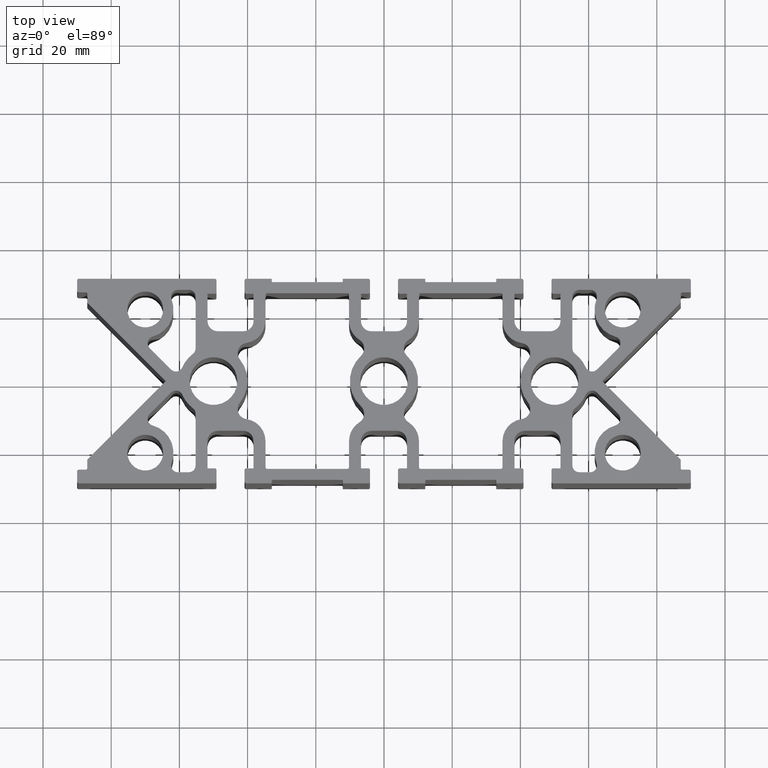
[diagram: clean part render]
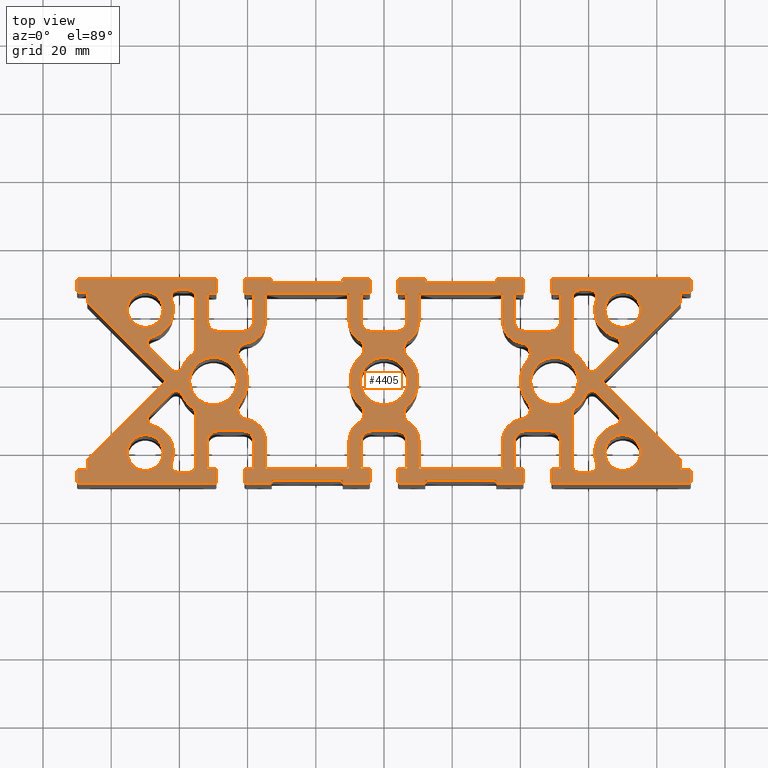
[diagram: same view with one face highlighted and labeled with its STEP entity id]
A machine part, top view. The second image highlights one B-rep face of the part: STEP entity #4405.
In plain terms, the highlighted planar face has unit normal (0, 0, 1).
Its self-contained STEP definition (entity closure, byte-faithful):
#15=FACE_BOUND('',#407,.T.);
#16=FACE_BOUND('',#408,.T.);
#17=FACE_BOUND('',#409,.T.);
#18=FACE_BOUND('',#410,.T.);
#19=FACE_BOUND('',#411,.T.);
#20=FACE_BOUND('',#412,.T.);
#21=FACE_BOUND('',#413,.T.);
#22=FACE_BOUND('',#414,.T.);
#23=FACE_BOUND('',#415,.T.);
#24=FACE_BOUND('',#416,.T.);
#25=FACE_BOUND('',#417,.T.);
#26=FACE_BOUND('',#418,.T.);
#27=FACE_BOUND('',#419,.T.);
#54=PLANE('',#4664);
#175=FACE_OUTER_BOUND('',#406,.T.);
#406=EDGE_LOOP('',(#2979,#2980,#2981,#2982,#2983,#2984,#2985,#2986,#2987,
#2988,#2989,#2990,#2991,#2992,#2993,#2994,#2995,#2996,#2997,#2998,#2999,
#3000,#3001,#3002,#3003,#3004,#3005,#3006,#3007,#3008,#3009,#3010,#3011,
#3012,#3013,#3014,#3015,#3016,#3017,#3018,#3019,#3020,#3021,#3022,#3023,
#3024,#3025,#3026,#3027,#3028,#3029,#3030,#3031,#3032,#3033,#3034,#3035,
#3036,#3037,#3038,#3039,#3040,#3041,#3042,#3043,#3044,#3045,#3046,#3047,
#3048,#3049,#3050,#3051,#3052,#3053,#3054,#3055,#3056,#3057,#3058,#3059,
#3060,#3061,#3062,#3063,#3064,#3065,#3066,#3067,#3068,#3069,#3070,#3071,
#3072,#3073,#3074,#3075,#3076,#3077,#3078,#3079,#3080,#3081,#3082,#3083,
#3084,#3085,#3086,#3087,#3088,#3089,#3090,#3091,#3092,#3093,#3094,#3095,
#3096,#3097,#3098,#3099,#3100,#3101,#3102,#3103,#3104,#3105,#3106,#3107,
#3108,#3109,#3110,#3111,#3112,#3113,#3114,#3115,#3116,#3117,#3118,#3119,
#3120));
#407=EDGE_LOOP('',(#3121,#3122,#3123,#3124,#3125,#3126,#3127,#3128,#3129,
#3130));
#408=EDGE_LOOP('',(#3131,#3132,#3133,#3134,#3135,#3136,#3137,#3138,#3139,
#3140));
#409=EDGE_LOOP('',(#3141,#3142,#3143,#3144,#3145,#3146,#3147,#3148,#3149,
#3150,#3151,#3152,#3153,#3154,#3155,#3156,#3157,#3158,#3159,#3160));
#410=EDGE_LOOP('',(#3161));
#411=EDGE_LOOP('',(#3162));
#412=EDGE_LOOP('',(#3163));
#413=EDGE_LOOP('',(#3164));
#414=EDGE_LOOP('',(#3165));
#415=EDGE_LOOP('',(#3166));
#416=EDGE_LOOP('',(#3167));
#417=EDGE_LOOP('',(#3168,#3169,#3170,#3171,#3172,#3173,#3174,#3175,#3176,
#3177,#3178,#3179,#3180,#3181,#3182,#3183,#3184,#3185,#3186,#3187));
#418=EDGE_LOOP('',(#3188,#3189,#3190,#3191,#3192,#3193,#3194,#3195,#3196,
#3197));
#419=EDGE_LOOP('',(#3198,#3199,#3200,#3201,#3202,#3203,#3204,#3205,#3206,
#3207));
#656=LINE('',#6512,#1090);
#662=LINE('',#6536,#1096);
#666=LINE('',#6546,#1100);
#672=LINE('',#6567,#1106);
#676=LINE('',#6579,#1110);
#680=LINE('',#6591,#1114);
#683=LINE('',#6609,#1117);
#684=LINE('',#6613,#1118);
#685=LINE('',#6617,#1119);
#686=LINE('',#6621,#1120);
#687=LINE('',#6625,#1121);
#688=LINE('',#6629,#1122);
#689=LINE('',#6631,#1123);
#690=LINE('',#6635,#1124);
#691=LINE('',#6639,#1125);
#692=LINE('',#6641,#1126);
#693=LINE('',#6645,#1127);
#694=LINE('',#6649,#1128);
#695=LINE('',#6651,#1129);
#696=LINE('',#6655,#1130);
#697=LINE('',#6659,#1131);
#698=LINE('',#6661,#1132);
#699=LINE('',#6665,#1133);
#700=LINE('',#6669,#1134);
#701=LINE('',#6671,#1135);
#702=LINE('',#6675,#1136);
#703=LINE('',#6679,#1137);
#704=LINE('',#6681,#1138);
#705=LINE('',#6685,#1139);
#706=LINE('',#6689,#1140);
#707=LINE('',#6691,#1141);
#708=LINE('',#6695,#1142);
#709=LINE('',#6699,#1143);
#710=LINE('',#6701,#1144);
#711=LINE('',#6705,#1145);
#712=LINE('',#6709,#1146);
#713=LINE('',#6711,#1147);
#714=LINE('',#6715,#1148);
#715=LINE('',#6719,#1149);
#716=LINE('',#6721,#1150);
#717=LINE('',#6725,#1151);
#718=LINE('',#6729,#1152);
#719=LINE('',#6733,#1153);
#720=LINE('',#6737,#1154);
#721=LINE('',#6741,#1155);
#722=LINE('',#6745,#1156);
#723=LINE('',#6747,#1157);
#724=LINE('',#6751,#1158);
#725=LINE('',#6755,#1159);
#726=LINE('',#6759,#1160);
#727=LINE('',#6763,#1161);
#728=LINE('',#6767,#1162);
#729=LINE('',#6771,#1163);
#730=LINE('',#6773,#1164);
#731=LINE('',#6777,#1165);
#732=LINE('',#6781,#1166);
#733=LINE('',#6783,#1167);
#734=LINE('',#6787,#1168);
#735=LINE('',#6791,#1169);
#736=LINE('',#6793,#1170);
#737=LINE('',#6797,#1171);
#738=LINE('',#6801,#1172);
#739=LINE('',#6803,#1173);
#740=LINE('',#6807,#1174);
#741=LINE('',#6811,#1175);
#742=LINE('',#6813,#1176);
#743=LINE('',#6817,#1177);
#744=LINE('',#6821,#1178);
#745=LINE('',#6823,#1179);
#746=LINE('',#6827,#1180);
#747=LINE('',#6831,#1181);
#748=LINE('',#6833,#1182);
#749=LINE('',#6837,#1183);
#750=LINE('',#6841,#1184);
#751=LINE('',#6843,#1185);
#752=LINE('',#6847,#1186);
#753=LINE('',#6851,#1187);
#754=LINE('',#6853,#1188);
#755=LINE('',#6857,#1189);
#756=LINE('',#6861,#1190);
#757=LINE('',#6863,#1191);
#758=LINE('',#6867,#1192);
#759=LINE('',#6871,#1193);
#760=LINE('',#6875,#1194);
#761=LINE('',#6879,#1195);
#762=LINE('',#6883,#1196);
#763=LINE('',#6887,#1197);
#764=LINE('',#6888,#1198);
#765=LINE('',#6897,#1199);
#766=LINE('',#6905,#1200);
#767=LINE('',#6908,#1201);
#768=LINE('',#6915,#1202);
#769=LINE('',#6923,#1203);
#770=LINE('',#6927,#1204);
#771=LINE('',#6937,#1205);
#772=LINE('',#6941,#1206);
#773=LINE('',#6945,#1207);
#774=LINE('',#6957,#1208);
#775=LINE('',#6961,#1209);
#776=LINE('',#6965,#1210);
#777=LINE('',#6992,#1211);
#778=LINE('',#6996,#1212);
#779=LINE('',#7000,#1213);
#780=LINE('',#7012,#1214);
#781=LINE('',#7020,#1215);
#782=LINE('',#7023,#1216);
#1090=VECTOR('',#5123,8.92704269656221);
#1096=VECTOR('',#5149,3.20464944616653);
#1100=VECTOR('',#5161,15.1877042505474);
#1106=VECTOR('',#5181,7.64999999999788);
#1110=VECTOR('',#5193,23.5);
#1114=VECTOR('',#5205,7.65000000005238);
#1117=VECTOR('',#5224,2.29289321881343);
#1118=VECTOR('',#5227,1.99999999999999);
#1119=VECTOR('',#5230,3.);
#1120=VECTOR('',#5233,39.9);
#1121=VECTOR('',#5236,3.4);
#1122=VECTOR('',#5239,2.14999999999998);
#1123=VECTOR('',#5240,7.99999999999998);
#1124=VECTOR('',#5243,7.50000000000001);
#1125=VECTOR('',#5246,7.99999999999998);
#1126=VECTOR('',#5247,2.14999999999999);
#1127=VECTOR('',#5250,3.4);
#1128=VECTOR('',#5253,7.49999999999999);
#1129=VECTOR('',#5254,0.750000000000002);
#1130=VECTOR('',#5257,20.3);
#1131=VECTOR('',#5260,0.749999999999997);
#1132=VECTOR('',#5261,7.49999999999999);
#1133=VECTOR('',#5264,3.40000000000001);
#1134=VECTOR('',#5267,2.14999999999999);
#1135=VECTOR('',#5268,8.);
#1136=VECTOR('',#5271,7.5);
#1137=VECTOR('',#5274,8.);
#1138=VECTOR('',#5275,2.14999999999999);
#1139=VECTOR('',#5278,3.40000000000001);
#1140=VECTOR('',#5281,7.49999999999999);
#1141=VECTOR('',#5282,0.749999999999997);
#1142=VECTOR('',#5285,20.3);
#1143=VECTOR('',#5288,0.750000000000002);
#1144=VECTOR('',#5289,7.49999999999999);
#1145=VECTOR('',#5292,3.4);
#1146=VECTOR('',#5295,2.14999999999999);
#1147=VECTOR('',#5296,7.99999999999998);
#1148=VECTOR('',#5299,7.50000000000001);
#1149=VECTOR('',#5302,7.99999999999998);
#1150=VECTOR('',#5303,2.14999999999998);
#1151=VECTOR('',#5306,3.4);
#1152=VECTOR('',#5309,39.9);
#1153=VECTOR('',#5312,3.);
#1154=VECTOR('',#5315,1.99999999999999);
#1155=VECTOR('',#5318,2.29289321881343);
#1156=VECTOR('',#5321,32.3198051533947);
#1157=VECTOR('',#5322,32.3198051533947);
#1158=VECTOR('',#5325,2.29289321881343);
#1159=VECTOR('',#5328,1.99999999999999);
#1160=VECTOR('',#5331,3.);
#1161=VECTOR('',#5334,39.9);
#1162=VECTOR('',#5337,3.4);
#1163=VECTOR('',#5340,2.14999999999998);
#1164=VECTOR('',#5341,7.99999999999998);
#1165=VECTOR('',#5344,7.50000000000001);
#1166=VECTOR('',#5347,7.99999999999998);
#1167=VECTOR('',#5348,2.14999999999999);
#1168=VECTOR('',#5351,3.4);
#1169=VECTOR('',#5354,7.49999999999999);
#1170=VECTOR('',#5355,0.750000000000002);
#1171=VECTOR('',#5358,20.3);
#1172=VECTOR('',#5361,0.749999999999997);
#1173=VECTOR('',#5362,7.49999999999999);
#1174=VECTOR('',#5365,3.40000000000001);
#1175=VECTOR('',#5368,2.14999999999999);
#1176=VECTOR('',#5369,8.);
#1177=VECTOR('',#5372,7.5);
#1178=VECTOR('',#5375,8.);
#1179=VECTOR('',#5376,2.14999999999999);
#1180=VECTOR('',#5379,3.40000000000001);
#1181=VECTOR('',#5382,7.49999999999999);
#1182=VECTOR('',#5383,0.749999999999997);
#1183=VECTOR('',#5386,20.3);
#1184=VECTOR('',#5389,0.750000000000002);
#1185=VECTOR('',#5390,7.49999999999999);
#1186=VECTOR('',#5393,3.4);
#1187=VECTOR('',#5396,2.14999999999999);
#1188=VECTOR('',#5397,7.99999999999998);
#1189=VECTOR('',#5400,7.50000000000001);
#1190=VECTOR('',#5403,7.99999999999998);
#1191=VECTOR('',#5404,2.14999999999998);
#1192=VECTOR('',#5407,3.4);
#1193=VECTOR('',#5410,39.9);
#1194=VECTOR('',#5413,3.);
#1195=VECTOR('',#5416,1.99999999999999);
#1196=VECTOR('',#5419,2.29289321881343);
#1197=VECTOR('',#5422,32.3198051533947);
#1198=VECTOR('',#5423,32.3198051533947);
#1199=VECTOR('',#5430,8.92704269656221);
#1200=VECTOR('',#5437,3.20464944616653);
#1201=VECTOR('',#5440,15.1877042505474);
#1202=VECTOR('',#5445,8.92704269656222);
#1203=VECTOR('',#5452,15.1877042505474);
#1204=VECTOR('',#5455,3.20464944616653);
#1205=VECTOR('',#5464,7.65000000005238);
#1206=VECTOR('',#5467,23.5);
#1207=VECTOR('',#5470,7.64999999999787);
#1208=VECTOR('',#5481,7.64999999999787);
#1209=VECTOR('',#5484,23.5);
#1210=VECTOR('',#5487,7.65000000005238);
#1211=VECTOR('',#5514,7.65000000005238);
#1212=VECTOR('',#5517,23.5);
#1213=VECTOR('',#5520,7.64999999999787);
#1214=VECTOR('',#5531,8.92704269656221);
#1215=VECTOR('',#5538,3.20464944616653);
#1216=VECTOR('',#5541,15.1877042505474);
#1520=CIRCLE('',#4621,2.00000000000002);
#1522=CIRCLE('',#4624,10.);
#1524=CIRCLE('',#4627,2.);
#1526=CIRCLE('',#4631,2.00000000000001);
#1528=CIRCLE('',#4634,8.26);
#1530=CIRCLE('',#4637,2.00000000000001);
#1532=CIRCLE('',#4641,2.00000000000001);
#1534=CIRCLE('',#4645,3.);
#1536=CIRCLE('',#4648,6.5);
#1538=CIRCLE('',#4652,0.5);
#1540=CIRCLE('',#4656,0.499999999999998);
#1542=CIRCLE('',#4660,6.5);
#1544=CIRCLE('',#4663,3.);
#1545=CIRCLE('',#4665,0.5);
#1546=CIRCLE('',#4666,0.5);
#1547=CIRCLE('',#4667,0.5);
#1548=CIRCLE('',#4668,0.5);
#1549=CIRCLE('',#4669,0.5);
#1550=CIRCLE('',#4670,0.5);
#1551=CIRCLE('',#4671,3.);
#1552=CIRCLE('',#4672,3.);
#1553=CIRCLE('',#4673,0.5);
#1554=CIRCLE('',#4674,0.5);
#1555=CIRCLE('',#4675,0.25);
#1556=CIRCLE('',#4676,0.25);
#1557=CIRCLE('',#4677,0.5);
#1558=CIRCLE('',#4678,0.5);
#1559=CIRCLE('',#4679,3.);
#1560=CIRCLE('',#4680,3.);
#1561=CIRCLE('',#4681,0.5);
#1562=CIRCLE('',#4682,0.5);
#1563=CIRCLE('',#4683,0.25);
#1564=CIRCLE('',#4684,0.25);
#1565=CIRCLE('',#4685,0.5);
#1566=CIRCLE('',#4686,0.5);
#1567=CIRCLE('',#4687,3.);
#1568=CIRCLE('',#4688,3.);
#1569=CIRCLE('',#4689,0.5);
#1570=CIRCLE('',#4690,0.5);
#1571=CIRCLE('',#4691,0.5);
#1572=CIRCLE('',#4692,0.5);
#1573=CIRCLE('',#4693,0.5);
#1574=CIRCLE('',#4694,0.5);
#1575=CIRCLE('',#4695,0.5);
#1576=CIRCLE('',#4696,0.5);
#1577=CIRCLE('',#4697,0.5);
#1578=CIRCLE('',#4698,0.5);
#1579=CIRCLE('',#4699,0.5);
#1580=CIRCLE('',#4700,0.5);
#1581=CIRCLE('',#4701,3.);
#1582=CIRCLE('',#4702,3.);
#1583=CIRCLE('',#4703,0.5);
#1584=CIRCLE('',#4704,0.5);
#1585=CIRCLE('',#4705,0.25);
#1586=CIRCLE('',#4706,0.25);
#1587=CIRCLE('',#4707,0.5);
#1588=CIRCLE('',#4708,0.5);
#1589=CIRCLE('',#4709,3.);
#1590=CIRCLE('',#4710,3.);
#1591=CIRCLE('',#4711,0.5);
#1592=CIRCLE('',#4712,0.5);
#1593=CIRCLE('',#4713,0.25);
#1594=CIRCLE('',#4714,0.25);
#1595=CIRCLE('',#4715,0.5);
#1596=CIRCLE('',#4716,0.5);
#1597=CIRCLE('',#4717,3.);
#1598=CIRCLE('',#4718,3.);
#1599=CIRCLE('',#4719,0.5);
#1600=CIRCLE('',#4720,0.5);
#1601=CIRCLE('',#4721,0.5);
#1602=CIRCLE('',#4722,0.5);
#1603=CIRCLE('',#4723,0.5);
#1604=CIRCLE('',#4724,0.5);
#1605=CIRCLE('',#4725,2.00000000000002);
#1606=CIRCLE('',#4726,10.);
#1607=CIRCLE('',#4727,2.);
#1608=CIRCLE('',#4728,2.00000000000001);
#1609=CIRCLE('',#4729,8.26);
#1610=CIRCLE('',#4730,2.00000000000001);
#1611=CIRCLE('',#4731,2.00000000000001);
#1612=CIRCLE('',#4732,8.26);
#1613=CIRCLE('',#4733,2.00000000000001);
#1614=CIRCLE('',#4734,2.);
#1615=CIRCLE('',#4735,10.);
#1616=CIRCLE('',#4736,2.00000000000002);
#1617=CIRCLE('',#4737,2.00000000000001);
#1618=CIRCLE('',#4738,2.00000000000001);
#1619=CIRCLE('',#4739,10.);
#1620=CIRCLE('',#4740,3.);
#1621=CIRCLE('',#4741,6.5);
#1622=CIRCLE('',#4742,0.499999999999998);
#1623=CIRCLE('',#4743,0.5);
#1624=CIRCLE('',#4744,6.5);
#1625=CIRCLE('',#4745,3.);
#1626=CIRCLE('',#4746,10.);
#1627=CIRCLE('',#4747,3.);
#1628=CIRCLE('',#4748,6.5);
#1629=CIRCLE('',#4749,0.5);
#1630=CIRCLE('',#4750,0.499999999999998);
#1631=CIRCLE('',#4751,6.5);
#1632=CIRCLE('',#4752,3.);
#1633=CIRCLE('',#4753,5.26);
#1634=CIRCLE('',#4754,5.26);
#1635=CIRCLE('',#4755,5.26);
#1636=CIRCLE('',#4756,5.26);
#1637=CIRCLE('',#4757,7.);
#1638=CIRCLE('',#4758,7.);
#1639=CIRCLE('',#4759,7.);
#1640=CIRCLE('',#4760,10.);
#1641=CIRCLE('',#4761,10.);
#1642=CIRCLE('',#4762,3.);
#1643=CIRCLE('',#4763,6.5);
#1644=CIRCLE('',#4764,0.499999999999998);
#1645=CIRCLE('',#4765,0.5);
#1646=CIRCLE('',#4766,6.5);
#1647=CIRCLE('',#4767,3.);
#1648=CIRCLE('',#4768,2.00000000000002);
#1649=CIRCLE('',#4769,10.);
#1650=CIRCLE('',#4770,2.);
#1651=CIRCLE('',#4771,2.00000000000001);
#1652=CIRCLE('',#4772,8.26);
#1653=CIRCLE('',#4773,2.00000000000001);
#1654=CIRCLE('',#4774,2.00000000000001);
#1767=VERTEX_POINT('',#6491);
#1768=VERTEX_POINT('',#6493);
#1770=VERTEX_POINT('',#6499);
#1772=VERTEX_POINT('',#6505);
#1774=VERTEX_POINT('',#6511);
#1776=VERTEX_POINT('',#6517);
#1778=VERTEX_POINT('',#6523);
#1780=VERTEX_POINT('',#6529);
#1782=VERTEX_POINT('',#6535);
#1784=VERTEX_POINT('',#6541);
#1787=VERTEX_POINT('',#6551);
#1788=VERTEX_POINT('',#6553);
#1790=VERTEX_POINT('',#6559);
#1792=VERTEX_POINT('',#6565);
#1794=VERTEX_POINT('',#6571);
#1796=VERTEX_POINT('',#6577);
#1798=VERTEX_POINT('',#6583);
#1800=VERTEX_POINT('',#6589);
#1802=VERTEX_POINT('',#6595);
#1804=VERTEX_POINT('',#6601);
#1805=VERTEX_POINT('',#6605);
#1806=VERTEX_POINT('',#6606);
#1807=VERTEX_POINT('',#6608);
#1808=VERTEX_POINT('',#6610);
#1809=VERTEX_POINT('',#6612);
#1810=VERTEX_POINT('',#6614);
#1811=VERTEX_POINT('',#6616);
#1812=VERTEX_POINT('',#6618);
#1813=VERTEX_POINT('',#6620);
#1814=VERTEX_POINT('',#6622);
#1815=VERTEX_POINT('',#6624);
#1816=VERTEX_POINT('',#6626);
#1817=VERTEX_POINT('',#6628);
#1818=VERTEX_POINT('',#6630);
#1819=VERTEX_POINT('',#6632);
#1820=VERTEX_POINT('',#6634);
#1821=VERTEX_POINT('',#6636);
#1822=VERTEX_POINT('',#6638);
#1823=VERTEX_POINT('',#6640);
#1824=VERTEX_POINT('',#6642);
#1825=VERTEX_POINT('',#6644);
#1826=VERTEX_POINT('',#6646);
#1827=VERTEX_POINT('',#6648);
#1828=VERTEX_POINT('',#6650);
#1829=VERTEX_POINT('',#6652);
#1830=VERTEX_POINT('',#6654);
#1831=VERTEX_POINT('',#6656);
#1832=VERTEX_POINT('',#6658);
#1833=VERTEX_POINT('',#6660);
#1834=VERTEX_POINT('',#6662);
#1835=VERTEX_POINT('',#6664);
#1836=VERTEX_POINT('',#6666);
#1837=VERTEX_POINT('',#6668);
#1838=VERTEX_POINT('',#6670);
#1839=VERTEX_POINT('',#6672);
#1840=VERTEX_POINT('',#6674);
#1841=VERTEX_POINT('',#6676);
#1842=VERTEX_POINT('',#6678);
#1843=VERTEX_POINT('',#6680);
#1844=VERTEX_POINT('',#6682);
#1845=VERTEX_POINT('',#6684);
#1846=VERTEX_POINT('',#6686);
#1847=VERTEX_POINT('',#6688);
#1848=VERTEX_POINT('',#6690);
#1849=VERTEX_POINT('',#6692);
#1850=VERTEX_POINT('',#6694);
#1851=VERTEX_POINT('',#6696);
#1852=VERTEX_POINT('',#6698);
#1853=VERTEX_POINT('',#6700);
#1854=VERTEX_POINT('',#6702);
#1855=VERTEX_POINT('',#6704);
#1856=VERTEX_POINT('',#6706);
#1857=VERTEX_POINT('',#6708);
#1858=VERTEX_POINT('',#6710);
#1859=VERTEX_POINT('',#6712);
#1860=VERTEX_POINT('',#6714);
#1861=VERTEX_POINT('',#6716);
#1862=VERTEX_POINT('',#6718);
#1863=VERTEX_POINT('',#6720);
#1864=VERTEX_POINT('',#6722);
#1865=VERTEX_POINT('',#6724);
#1866=VERTEX_POINT('',#6726);
#1867=VERTEX_POINT('',#6728);
#1868=VERTEX_POINT('',#6730);
#1869=VERTEX_POINT('',#6732);
#1870=VERTEX_POINT('',#6734);
#1871=VERTEX_POINT('',#6736);
#1872=VERTEX_POINT('',#6738);
#1873=VERTEX_POINT('',#6740);
#1874=VERTEX_POINT('',#6742);
#1875=VERTEX_POINT('',#6744);
#1876=VERTEX_POINT('',#6746);
#1877=VERTEX_POINT('',#6748);
#1878=VERTEX_POINT('',#6750);
#1879=VERTEX_POINT('',#6752);
#1880=VERTEX_POINT('',#6754);
#1881=VERTEX_POINT('',#6756);
#1882=VERTEX_POINT('',#6758);
#1883=VERTEX_POINT('',#6760);
#1884=VERTEX_POINT('',#6762);
#1885=VERTEX_POINT('',#6764);
#1886=VERTEX_POINT('',#6766);
#1887=VERTEX_POINT('',#6768);
#1888=VERTEX_POINT('',#6770);
#1889=VERTEX_POINT('',#6772);
#1890=VERTEX_POINT('',#6774);
#1891=VERTEX_POINT('',#6776);
#1892=VERTEX_POINT('',#6778);
#1893=VERTEX_POINT('',#6780);
#1894=VERTEX_POINT('',#6782);
#1895=VERTEX_POINT('',#6784);
#1896=VERTEX_POINT('',#6786);
#1897=VERTEX_POINT('',#6788);
#1898=VERTEX_POINT('',#6790);
#1899=VERTEX_POINT('',#6792);
#1900=VERTEX_POINT('',#6794);
#1901=VERTEX_POINT('',#6796);
#1902=VERTEX_POINT('',#6798);
#1903=VERTEX_POINT('',#6800);
#1904=VERTEX_POINT('',#6802);
#1905=VERTEX_POINT('',#6804);
#1906=VERTEX_POINT('',#6806);
#1907=VERTEX_POINT('',#6808);
#1908=VERTEX_POINT('',#6810);
#1909=VERTEX_POINT('',#6812);
#1910=VERTEX_POINT('',#6814);
#1911=VERTEX_POINT('',#6816);
#1912=VERTEX_POINT('',#6818);
#1913=VERTEX_POINT('',#6820);
#1914=VERTEX_POINT('',#6822);
#1915=VERTEX_POINT('',#6824);
#1916=VERTEX_POINT('',#6826);
#1917=VERTEX_POINT('',#6828);
#1918=VERTEX_POINT('',#6830);
#1919=VERTEX_POINT('',#6832);
#1920=VERTEX_POINT('',#6834);
#1921=VERTEX_POINT('',#6836);
#1922=VERTEX_POINT('',#6838);
#1923=VERTEX_POINT('',#6840);
#1924=VERTEX_POINT('',#6842);
#1925=VERTEX_POINT('',#6844);
#1926=VERTEX_POINT('',#6846);
#1927=VERTEX_POINT('',#6848);
#1928=VERTEX_POINT('',#6850);
#1929=VERTEX_POINT('',#6852);
#1930=VERTEX_POINT('',#6854);
#1931=VERTEX_POINT('',#6856);
#1932=VERTEX_POINT('',#6858);
#1933=VERTEX_POINT('',#6860);
#1934=VERTEX_POINT('',#6862);
#1935=VERTEX_POINT('',#6864);
#1936=VERTEX_POINT('',#6866);
#1937=VERTEX_POINT('',#6868);
#1938=VERTEX_POINT('',#6870);
#1939=VERTEX_POINT('',#6872);
#1940=VERTEX_POINT('',#6874);
#1941=VERTEX_POINT('',#6876);
#1942=VERTEX_POINT('',#6878);
#1943=VERTEX_POINT('',#6880);
#1944=VERTEX_POINT('',#6882);
#1945=VERTEX_POINT('',#6884);
#1946=VERTEX_POINT('',#6886);
#1947=VERTEX_POINT('',#6889);
#1948=VERTEX_POINT('',#6890);
#1949=VERTEX_POINT('',#6892);
#1950=VERTEX_POINT('',#6894);
#1951=VERTEX_POINT('',#6896);
#1952=VERTEX_POINT('',#6898);
#1953=VERTEX_POINT('',#6900);
#1954=VERTEX_POINT('',#6902);
#1955=VERTEX_POINT('',#6904);
#1956=VERTEX_POINT('',#6906);
#1957=VERTEX_POINT('',#6909);
#1958=VERTEX_POINT('',#6910);
#1959=VERTEX_POINT('',#6912);
#1960=VERTEX_POINT('',#6914);
#1961=VERTEX_POINT('',#6916);
#1962=VERTEX_POINT('',#6918);
#1963=VERTEX_POINT('',#6920);
#1964=VERTEX_POINT('',#6922);
#1965=VERTEX_POINT('',#6924);
#1966=VERTEX_POINT('',#6926);
#1967=VERTEX_POINT('',#6929);
#1968=VERTEX_POINT('',#6930);
#1969=VERTEX_POINT('',#6932);
#1970=VERTEX_POINT('',#6934);
#1971=VERTEX_POINT('',#6936);
#1972=VERTEX_POINT('',#6938);
#1973=VERTEX_POINT('',#6940);
#1974=VERTEX_POINT('',#6942);
#1975=VERTEX_POINT('',#6944);
#1976=VERTEX_POINT('',#6946);
#1977=VERTEX_POINT('',#6948);
#1978=VERTEX_POINT('',#6950);
#1979=VERTEX_POINT('',#6952);
#1980=VERTEX_POINT('',#6954);
#1981=VERTEX_POINT('',#6956);
#1982=VERTEX_POINT('',#6958);
#1983=VERTEX_POINT('',#6960);
#1984=VERTEX_POINT('',#6962);
#1985=VERTEX_POINT('',#6964);
#1986=VERTEX_POINT('',#6966);
#1987=VERTEX_POINT('',#6969);
#1988=VERTEX_POINT('',#6971);
#1989=VERTEX_POINT('',#6973);
#1990=VERTEX_POINT('',#6975);
#1991=VERTEX_POINT('',#6977);
#1992=VERTEX_POINT('',#6979);
#1993=VERTEX_POINT('',#6981);
#1994=VERTEX_POINT('',#6983);
#1995=VERTEX_POINT('',#6985);
#1996=VERTEX_POINT('',#6987);
#1997=VERTEX_POINT('',#6989);
#1998=VERTEX_POINT('',#6991);
#1999=VERTEX_POINT('',#6993);
#2000=VERTEX_POINT('',#6995);
#2001=VERTEX_POINT('',#6997);
#2002=VERTEX_POINT('',#6999);
#2003=VERTEX_POINT('',#7001);
#2004=VERTEX_POINT('',#7004);
#2005=VERTEX_POINT('',#7005);
#2006=VERTEX_POINT('',#7007);
#2007=VERTEX_POINT('',#7009);
#2008=VERTEX_POINT('',#7011);
#2009=VERTEX_POINT('',#7013);
#2010=VERTEX_POINT('',#7015);
#2011=VERTEX_POINT('',#7017);
#2012=VERTEX_POINT('',#7019);
#2013=VERTEX_POINT('',#7021);
#2225=EDGE_CURVE('',#1768,#1767,#1520,.T.);
#2228=EDGE_CURVE('',#1770,#1768,#1522,.T.);
#2231=EDGE_CURVE('',#1772,#1770,#1524,.T.);
#2234=EDGE_CURVE('',#1774,#1772,#656,.T.);
#2237=EDGE_CURVE('',#1776,#1774,#1526,.T.);
#2240=EDGE_CURVE('',#1778,#1776,#1528,.T.);
#2243=EDGE_CURVE('',#1780,#1778,#1530,.T.);
#2246=EDGE_CURVE('',#1782,#1780,#662,.T.);
#2249=EDGE_CURVE('',#1784,#1782,#1532,.T.);
#2252=EDGE_CURVE('',#1767,#1784,#666,.T.);
#2255=EDGE_CURVE('',#1788,#1787,#1534,.T.);
#2259=EDGE_CURVE('',#1787,#1790,#1536,.T.);
#2262=EDGE_CURVE('',#1790,#1792,#672,.T.);
#2265=EDGE_CURVE('',#1792,#1794,#1538,.T.);
#2268=EDGE_CURVE('',#1794,#1796,#676,.T.);
#2271=EDGE_CURVE('',#1796,#1798,#1540,.T.);
#2274=EDGE_CURVE('',#1798,#1800,#680,.T.);
#2277=EDGE_CURVE('',#1800,#1802,#1542,.T.);
#2280=EDGE_CURVE('',#1802,#1804,#1544,.T.);
#2281=EDGE_CURVE('',#1805,#1806,#1545,.T.);
#2282=EDGE_CURVE('',#1805,#1807,#683,.T.);
#2283=EDGE_CURVE('',#1808,#1807,#1546,.T.);
#2284=EDGE_CURVE('',#1808,#1809,#684,.T.);
#2285=EDGE_CURVE('',#1810,#1809,#1547,.T.);
#2286=EDGE_CURVE('',#1810,#1811,#685,.T.);
#2287=EDGE_CURVE('',#1812,#1811,#1548,.T.);
#2288=EDGE_CURVE('',#1812,#1813,#686,.T.);
#2289=EDGE_CURVE('',#1814,#1813,#1549,.T.);
#2290=EDGE_CURVE('',#1814,#1815,#687,.T.);
#2291=EDGE_CURVE('',#1816,#1815,#1550,.T.);
#2292=EDGE_CURVE('',#1816,#1817,#688,.T.);
#2293=EDGE_CURVE('',#1817,#1818,#689,.T.);
#2294=EDGE_CURVE('',#1819,#1818,#1551,.T.);
#2295=EDGE_CURVE('',#1819,#1820,#690,.T.);
#2296=EDGE_CURVE('',#1821,#1820,#1552,.T.);
#2297=EDGE_CURVE('',#1821,#1822,#691,.T.);
#2298=EDGE_CURVE('',#1822,#1823,#692,.T.);
#2299=EDGE_CURVE('',#1824,#1823,#1553,.T.);
#2300=EDGE_CURVE('',#1824,#1825,#693,.T.);
#2301=EDGE_CURVE('',#1826,#1825,#1554,.T.);
#2302=EDGE_CURVE('',#1826,#1827,#694,.T.);
#2303=EDGE_CURVE('',#1827,#1828,#695,.T.);
#2304=EDGE_CURVE('',#1829,#1828,#1555,.T.);
#2305=EDGE_CURVE('',#1829,#1830,#696,.T.);
#2306=EDGE_CURVE('',#1831,#1830,#1556,.T.);
#2307=EDGE_CURVE('',#1831,#1832,#697,.T.);
#2308=EDGE_CURVE('',#1832,#1833,#698,.T.);
#2309=EDGE_CURVE('',#1834,#1833,#1557,.T.);
#2310=EDGE_CURVE('',#1834,#1835,#699,.T.);
#2311=EDGE_CURVE('',#1836,#1835,#1558,.T.);
#2312=EDGE_CURVE('',#1836,#1837,#700,.T.);
#2313=EDGE_CURVE('',#1837,#1838,#701,.T.);
#2314=EDGE_CURVE('',#1839,#1838,#1559,.T.);
#2315=EDGE_CURVE('',#1839,#1840,#702,.T.);
#2316=EDGE_CURVE('',#1840,#1841,#1560,.T.);
#2317=EDGE_CURVE('',#1842,#1841,#703,.T.);
#2318=EDGE_CURVE('',#1843,#1842,#704,.T.);
#2319=EDGE_CURVE('',#1843,#1844,#1561,.T.);
#2320=EDGE_CURVE('',#1845,#1844,#705,.T.);
#2321=EDGE_CURVE('',#1845,#1846,#1562,.T.);
#2322=EDGE_CURVE('',#1847,#1846,#706,.T.);
#2323=EDGE_CURVE('',#1848,#1847,#707,.T.);
#2324=EDGE_CURVE('',#1848,#1849,#1563,.T.);
#2325=EDGE_CURVE('',#1850,#1849,#708,.T.);
#2326=EDGE_CURVE('',#1850,#1851,#1564,.T.);
#2327=EDGE_CURVE('',#1852,#1851,#709,.T.);
#2328=EDGE_CURVE('',#1853,#1852,#710,.T.);
#2329=EDGE_CURVE('',#1853,#1854,#1565,.T.);
#2330=EDGE_CURVE('',#1855,#1854,#711,.T.);
#2331=EDGE_CURVE('',#1855,#1856,#1566,.T.);
#2332=EDGE_CURVE('',#1857,#1856,#712,.T.);
#2333=EDGE_CURVE('',#1858,#1857,#713,.T.);
#2334=EDGE_CURVE('',#1858,#1859,#1567,.T.);
#2335=EDGE_CURVE('',#1860,#1859,#714,.T.);
#2336=EDGE_CURVE('',#1860,#1861,#1568,.T.);
#2337=EDGE_CURVE('',#1862,#1861,#715,.T.);
#2338=EDGE_CURVE('',#1863,#1862,#716,.T.);
#2339=EDGE_CURVE('',#1863,#1864,#1569,.T.);
#2340=EDGE_CURVE('',#1865,#1864,#717,.T.);
#2341=EDGE_CURVE('',#1865,#1866,#1570,.T.);
#2342=EDGE_CURVE('',#1867,#1866,#718,.T.);
#2343=EDGE_CURVE('',#1867,#1868,#1571,.T.);
#2344=EDGE_CURVE('',#1869,#1868,#719,.T.);
#2345=EDGE_CURVE('',#1869,#1870,#1572,.T.);
#2346=EDGE_CURVE('',#1871,#1870,#720,.T.);
#2347=EDGE_CURVE('',#1871,#1872,#1573,.T.);
#2348=EDGE_CURVE('',#1873,#1872,#721,.T.);
#2349=EDGE_CURVE('',#1873,#1874,#1574,.T.);
#2350=EDGE_CURVE('',#1875,#1874,#722,.T.);
#2351=EDGE_CURVE('',#1875,#1876,#723,.T.);
#2352=EDGE_CURVE('',#1877,#1876,#1575,.T.);
#2353=EDGE_CURVE('',#1877,#1878,#724,.T.);
#2354=EDGE_CURVE('',#1879,#1878,#1576,.T.);
#2355=EDGE_CURVE('',#1879,#1880,#725,.T.);
#2356=EDGE_CURVE('',#1881,#1880,#1577,.T.);
#2357=EDGE_CURVE('',#1881,#1882,#726,.T.);
#2358=EDGE_CURVE('',#1883,#1882,#1578,.T.);
#2359=EDGE_CURVE('',#1883,#1884,#727,.T.);
#2360=EDGE_CURVE('',#1885,#1884,#1579,.T.);
#2361=EDGE_CURVE('',#1885,#1886,#728,.T.);
#2362=EDGE_CURVE('',#1887,#1886,#1580,.T.);
#2363=EDGE_CURVE('',#1887,#1888,#729,.T.);
#2364=EDGE_CURVE('',#1888,#1889,#730,.T.);
#2365=EDGE_CURVE('',#1890,#1889,#1581,.T.);
#2366=EDGE_CURVE('',#1890,#1891,#731,.T.);
#2367=EDGE_CURVE('',#1892,#1891,#1582,.T.);
#2368=EDGE_CURVE('',#1892,#1893,#732,.T.);
#2369=EDGE_CURVE('',#1893,#1894,#733,.T.);
#2370=EDGE_CURVE('',#1895,#1894,#1583,.T.);
#2371=EDGE_CURVE('',#1895,#1896,#734,.T.);
#2372=EDGE_CURVE('',#1897,#1896,#1584,.T.);
#2373=EDGE_CURVE('',#1897,#1898,#735,.T.);
#2374=EDGE_CURVE('',#1898,#1899,#736,.T.);
#2375=EDGE_CURVE('',#1900,#1899,#1585,.T.);
#2376=EDGE_CURVE('',#1900,#1901,#737,.T.);
#2377=EDGE_CURVE('',#1902,#1901,#1586,.T.);
#2378=EDGE_CURVE('',#1902,#1903,#738,.T.);
#2379=EDGE_CURVE('',#1903,#1904,#739,.T.);
#2380=EDGE_CURVE('',#1905,#1904,#1587,.T.);
#2381=EDGE_CURVE('',#1905,#1906,#740,.T.);
#2382=EDGE_CURVE('',#1907,#1906,#1588,.T.);
#2383=EDGE_CURVE('',#1907,#1908,#741,.T.);
#2384=EDGE_CURVE('',#1908,#1909,#742,.T.);
#2385=EDGE_CURVE('',#1910,#1909,#1589,.T.);
#2386=EDGE_CURVE('',#1910,#1911,#743,.T.);
#2387=EDGE_CURVE('',#1911,#1912,#1590,.T.);
#2388=EDGE_CURVE('',#1913,#1912,#744,.T.);
#2389=EDGE_CURVE('',#1914,#1913,#745,.T.);
#2390=EDGE_CURVE('',#1914,#1915,#1591,.T.);
#2391=EDGE_CURVE('',#1916,#1915,#746,.T.);
#2392=EDGE_CURVE('',#1916,#1917,#1592,.T.);
#2393=EDGE_CURVE('',#1918,#1917,#747,.T.);
#2394=EDGE_CURVE('',#1919,#1918,#748,.T.);
#2395=EDGE_CURVE('',#1919,#1920,#1593,.T.);
#2396=EDGE_CURVE('',#1921,#1920,#749,.T.);
#2397=EDGE_CURVE('',#1921,#1922,#1594,.T.);
#2398=EDGE_CURVE('',#1923,#1922,#750,.T.);
#2399=EDGE_CURVE('',#1924,#1923,#751,.T.);
#2400=EDGE_CURVE('',#1924,#1925,#1595,.T.);
#2401=EDGE_CURVE('',#1926,#1925,#752,.T.);
#2402=EDGE_CURVE('',#1926,#1927,#1596,.T.);
#2403=EDGE_CURVE('',#1928,#1927,#753,.T.);
#2404=EDGE_CURVE('',#1929,#1928,#754,.T.);
#2405=EDGE_CURVE('',#1929,#1930,#1597,.T.);
#2406=EDGE_CURVE('',#1931,#1930,#755,.T.);
#2407=EDGE_CURVE('',#1931,#1932,#1598,.T.);
#2408=EDGE_CURVE('',#1933,#1932,#756,.T.);
#2409=EDGE_CURVE('',#1934,#1933,#757,.T.);
#2410=EDGE_CURVE('',#1934,#1935,#1599,.T.);
#2411=EDGE_CURVE('',#1936,#1935,#758,.T.);
#2412=EDGE_CURVE('',#1936,#1937,#1600,.T.);
#2413=EDGE_CURVE('',#1938,#1937,#759,.T.);
#2414=EDGE_CURVE('',#1938,#1939,#1601,.T.);
#2415=EDGE_CURVE('',#1940,#1939,#760,.T.);
#2416=EDGE_CURVE('',#1940,#1941,#1602,.T.);
#2417=EDGE_CURVE('',#1942,#1941,#761,.T.);
#2418=EDGE_CURVE('',#1942,#1943,#1603,.T.);
#2419=EDGE_CURVE('',#1944,#1943,#762,.T.);
#2420=EDGE_CURVE('',#1944,#1945,#1604,.T.);
#2421=EDGE_CURVE('',#1946,#1945,#763,.T.);
#2422=EDGE_CURVE('',#1946,#1806,#764,.T.);
#2423=EDGE_CURVE('',#1947,#1948,#1605,.T.);
#2424=EDGE_CURVE('',#1948,#1949,#1606,.T.);
#2425=EDGE_CURVE('',#1949,#1950,#1607,.T.);
#2426=EDGE_CURVE('',#1950,#1951,#765,.T.);
#2427=EDGE_CURVE('',#1951,#1952,#1608,.T.);
#2428=EDGE_CURVE('',#1952,#1953,#1609,.T.);
#2429=EDGE_CURVE('',#1953,#1954,#1610,.T.);
#2430=EDGE_CURVE('',#1954,#1955,#766,.T.);
#2431=EDGE_CURVE('',#1955,#1956,#1611,.T.);
#2432=EDGE_CURVE('',#1956,#1947,#767,.T.);
#2433=EDGE_CURVE('',#1957,#1958,#1612,.T.);
#2434=EDGE_CURVE('',#1958,#1959,#1613,.T.);
#2435=EDGE_CURVE('',#1959,#1960,#768,.T.);
#2436=EDGE_CURVE('',#1960,#1961,#1614,.T.);
#2437=EDGE_CURVE('',#1961,#1962,#1615,.T.);
#2438=EDGE_CURVE('',#1962,#1963,#1616,.T.);
#2439=EDGE_CURVE('',#1963,#1964,#769,.T.);
#2440=EDGE_CURVE('',#1964,#1965,#1617,.T.);
#2441=EDGE_CURVE('',#1965,#1966,#770,.T.);
#2442=EDGE_CURVE('',#1966,#1957,#1618,.T.);
#2443=EDGE_CURVE('',#1967,#1968,#1619,.T.);
#2444=EDGE_CURVE('',#1968,#1969,#1620,.T.);
#2445=EDGE_CURVE('',#1969,#1970,#1621,.T.);
#2446=EDGE_CURVE('',#1970,#1971,#771,.T.);
#2447=EDGE_CURVE('',#1971,#1972,#1622,.T.);
#2448=EDGE_CURVE('',#1972,#1973,#772,.T.);
#2449=EDGE_CURVE('',#1973,#1974,#1623,.T.);
#2450=EDGE_CURVE('',#1974,#1975,#773,.T.);
#2451=EDGE_CURVE('',#1975,#1976,#1624,.T.);
#2452=EDGE_CURVE('',#1976,#1977,#1625,.T.);
#2453=EDGE_CURVE('',#1977,#1978,#1626,.T.);
#2454=EDGE_CURVE('',#1978,#1979,#1627,.T.);
#2455=EDGE_CURVE('',#1979,#1980,#1628,.T.);
#2456=EDGE_CURVE('',#1980,#1981,#774,.T.);
#2457=EDGE_CURVE('',#1981,#1982,#1629,.T.);
#2458=EDGE_CURVE('',#1982,#1983,#775,.T.);
#2459=EDGE_CURVE('',#1983,#1984,#1630,.T.);
#2460=EDGE_CURVE('',#1984,#1985,#776,.T.);
#2461=EDGE_CURVE('',#1985,#1986,#1631,.T.);
#2462=EDGE_CURVE('',#1986,#1967,#1632,.T.);
#2463=EDGE_CURVE('',#1987,#1987,#1633,.T.);
#2464=EDGE_CURVE('',#1988,#1988,#1634,.T.);
#2465=EDGE_CURVE('',#1989,#1989,#1635,.T.);
#2466=EDGE_CURVE('',#1990,#1990,#1636,.T.);
#2467=EDGE_CURVE('',#1991,#1991,#1637,.T.);
#2468=EDGE_CURVE('',#1992,#1992,#1638,.T.);
#2469=EDGE_CURVE('',#1993,#1993,#1639,.T.);
#2470=EDGE_CURVE('',#1994,#1788,#1640,.T.);
#2471=EDGE_CURVE('',#1804,#1995,#1641,.T.);
#2472=EDGE_CURVE('',#1995,#1996,#1642,.T.);
#2473=EDGE_CURVE('',#1996,#1997,#1643,.T.);
#2474=EDGE_CURVE('',#1997,#1998,#777,.T.);
#2475=EDGE_CURVE('',#1998,#1999,#1644,.T.);
#2476=EDGE_CURVE('',#1999,#2000,#778,.T.);
#2477=EDGE_CURVE('',#2000,#2001,#1645,.T.);
#2478=EDGE_CURVE('',#2001,#2002,#779,.T.);
#2479=EDGE_CURVE('',#2002,#2003,#1646,.T.);
#2480=EDGE_CURVE('',#2003,#1994,#1647,.T.);
#2481=EDGE_CURVE('',#2004,#2005,#1648,.T.);
#2482=EDGE_CURVE('',#2005,#2006,#1649,.T.);
#2483=EDGE_CURVE('',#2006,#2007,#1650,.T.);
#2484=EDGE_CURVE('',#2007,#2008,#780,.T.);
#2485=EDGE_CURVE('',#2008,#2009,#1651,.T.);
#2486=EDGE_CURVE('',#2009,#2010,#1652,.T.);
#2487=EDGE_CURVE('',#2010,#2011,#1653,.T.);
#2488=EDGE_CURVE('',#2011,#2012,#781,.T.);
#2489=EDGE_CURVE('',#2012,#2013,#1654,.T.);
#2490=EDGE_CURVE('',#2013,#2004,#782,.T.);
#2979=ORIENTED_EDGE('',*,*,#2281,.F.);
#2980=ORIENTED_EDGE('',*,*,#2282,.T.);
#2981=ORIENTED_EDGE('',*,*,#2283,.F.);
#2982=ORIENTED_EDGE('',*,*,#2284,.T.);
#2983=ORIENTED_EDGE('',*,*,#2285,.F.);
#2984=ORIENTED_EDGE('',*,*,#2286,.T.);
#2985=ORIENTED_EDGE('',*,*,#2287,.F.);
#2986=ORIENTED_EDGE('',*,*,#2288,.T.);
#2987=ORIENTED_EDGE('',*,*,#2289,.F.);
#2988=ORIENTED_EDGE('',*,*,#2290,.T.);
#2989=ORIENTED_EDGE('',*,*,#2291,.F.);
#2990=ORIENTED_EDGE('',*,*,#2292,.T.);
#2991=ORIENTED_EDGE('',*,*,#2293,.T.);
#2992=ORIENTED_EDGE('',*,*,#2294,.F.);
#2993=ORIENTED_EDGE('',*,*,#2295,.T.);
#2994=ORIENTED_EDGE('',*,*,#2296,.F.);
#2995=ORIENTED_EDGE('',*,*,#2297,.T.);
#2996=ORIENTED_EDGE('',*,*,#2298,.T.);
#2997=ORIENTED_EDGE('',*,*,#2299,.F.);
#2998=ORIENTED_EDGE('',*,*,#2300,.T.);
#2999=ORIENTED_EDGE('',*,*,#2301,.F.);
#3000=ORIENTED_EDGE('',*,*,#2302,.T.);
#3001=ORIENTED_EDGE('',*,*,#2303,.T.);
#3002=ORIENTED_EDGE('',*,*,#2304,.F.);
#3003=ORIENTED_EDGE('',*,*,#2305,.T.);
#3004=ORIENTED_EDGE('',*,*,#2306,.F.);
#3005=ORIENTED_EDGE('',*,*,#2307,.T.);
#3006=ORIENTED_EDGE('',*,*,#2308,.T.);
#3007=ORIENTED_EDGE('',*,*,#2309,.F.);
#3008=ORIENTED_EDGE('',*,*,#2310,.T.);
#3009=ORIENTED_EDGE('',*,*,#2311,.F.);
#3010=ORIENTED_EDGE('',*,*,#2312,.T.);
#3011=ORIENTED_EDGE('',*,*,#2313,.T.);
#3012=ORIENTED_EDGE('',*,*,#2314,.F.);
#3013=ORIENTED_EDGE('',*,*,#2315,.T.);
#3014=ORIENTED_EDGE('',*,*,#2316,.T.);
#3015=ORIENTED_EDGE('',*,*,#2317,.F.);
#3016=ORIENTED_EDGE('',*,*,#2318,.F.);
#3017=ORIENTED_EDGE('',*,*,#2319,.T.);
#3018=ORIENTED_EDGE('',*,*,#2320,.F.);
#3019=ORIENTED_EDGE('',*,*,#2321,.T.);
#3020=ORIENTED_EDGE('',*,*,#2322,.F.);
#3021=ORIENTED_EDGE('',*,*,#2323,.F.);
#3022=ORIENTED_EDGE('',*,*,#2324,.T.);
#3023=ORIENTED_EDGE('',*,*,#2325,.F.);
#3024=ORIENTED_EDGE('',*,*,#2326,.T.);
#3025=ORIENTED_EDGE('',*,*,#2327,.F.);
#3026=ORIENTED_EDGE('',*,*,#2328,.F.);
#3027=ORIENTED_EDGE('',*,*,#2329,.T.);
#3028=ORIENTED_EDGE('',*,*,#2330,.F.);
#3029=ORIENTED_EDGE('',*,*,#2331,.T.);
#3030=ORIENTED_EDGE('',*,*,#2332,.F.);
#3031=ORIENTED_EDGE('',*,*,#2333,.F.);
#3032=ORIENTED_EDGE('',*,*,#2334,.T.);
#3033=ORIENTED_EDGE('',*,*,#2335,.F.);
#3034=ORIENTED_EDGE('',*,*,#2336,.T.);
#3035=ORIENTED_EDGE('',*,*,#2337,.F.);
#3036=ORIENTED_EDGE('',*,*,#2338,.F.);
#3037=ORIENTED_EDGE('',*,*,#2339,.T.);
#3038=ORIENTED_EDGE('',*,*,#2340,.F.);
#3039=ORIENTED_EDGE('',*,*,#2341,.T.);
#3040=ORIENTED_EDGE('',*,*,#2342,.F.);
#3041=ORIENTED_EDGE('',*,*,#2343,.T.);
#3042=ORIENTED_EDGE('',*,*,#2344,.F.);
#3043=ORIENTED_EDGE('',*,*,#2345,.T.);
#3044=ORIENTED_EDGE('',*,*,#2346,.F.);
#3045=ORIENTED_EDGE('',*,*,#2347,.T.);
#3046=ORIENTED_EDGE('',*,*,#2348,.F.);
#3047=ORIENTED_EDGE('',*,*,#2349,.T.);
#3048=ORIENTED_EDGE('',*,*,#2350,.F.);
#3049=ORIENTED_EDGE('',*,*,#2351,.T.);
#3050=ORIENTED_EDGE('',*,*,#2352,.F.);
#3051=ORIENTED_EDGE('',*,*,#2353,.T.);
#3052=ORIENTED_EDGE('',*,*,#2354,.F.);
#3053=ORIENTED_EDGE('',*,*,#2355,.T.);
#3054=ORIENTED_EDGE('',*,*,#2356,.F.);
#3055=ORIENTED_EDGE('',*,*,#2357,.T.);
#3056=ORIENTED_EDGE('',*,*,#2358,.F.);
#3057=ORIENTED_EDGE('',*,*,#2359,.T.);
#3058=ORIENTED_EDGE('',*,*,#2360,.F.);
#3059=ORIENTED_EDGE('',*,*,#2361,.T.);
#3060=ORIENTED_EDGE('',*,*,#2362,.F.);
#3061=ORIENTED_EDGE('',*,*,#2363,.T.);
#3062=ORIENTED_EDGE('',*,*,#2364,.T.);
#3063=ORIENTED_EDGE('',*,*,#2365,.F.);
#3064=ORIENTED_EDGE('',*,*,#2366,.T.);
#3065=ORIENTED_EDGE('',*,*,#2367,.F.);
#3066=ORIENTED_EDGE('',*,*,#2368,.T.);
#3067=ORIENTED_EDGE('',*,*,#2369,.T.);
#3068=ORIENTED_EDGE('',*,*,#2370,.F.);
#3069=ORIENTED_EDGE('',*,*,#2371,.T.);
#3070=ORIENTED_EDGE('',*,*,#2372,.F.);
#3071=ORIENTED_EDGE('',*,*,#2373,.T.);
#3072=ORIENTED_EDGE('',*,*,#2374,.T.);
#3073=ORIENTED_EDGE('',*,*,#2375,.F.);
#3074=ORIENTED_EDGE('',*,*,#2376,.T.);
#3075=ORIENTED_EDGE('',*,*,#2377,.F.);
#3076=ORIENTED_EDGE('',*,*,#2378,.T.);
#3077=ORIENTED_EDGE('',*,*,#2379,.T.);
#3078=ORIENTED_EDGE('',*,*,#2380,.F.);
#3079=ORIENTED_EDGE('',*,*,#2381,.T.);
#3080=ORIENTED_EDGE('',*,*,#2382,.F.);
#3081=ORIENTED_EDGE('',*,*,#2383,.T.);
#3082=ORIENTED_EDGE('',*,*,#2384,.T.);
#3083=ORIENTED_EDGE('',*,*,#2385,.F.);
#3084=ORIENTED_EDGE('',*,*,#2386,.T.);
#3085=ORIENTED_EDGE('',*,*,#2387,.T.);
#3086=ORIENTED_EDGE('',*,*,#2388,.F.);
#3087=ORIENTED_EDGE('',*,*,#2389,.F.);
#3088=ORIENTED_EDGE('',*,*,#2390,.T.);
#3089=ORIENTED_EDGE('',*,*,#2391,.F.);
#3090=ORIENTED_EDGE('',*,*,#2392,.T.);
#3091=ORIENTED_EDGE('',*,*,#2393,.F.);
#3092=ORIENTED_EDGE('',*,*,#2394,.F.);
#3093=ORIENTED_EDGE('',*,*,#2395,.T.);
#3094=ORIENTED_EDGE('',*,*,#2396,.F.);
#3095=ORIENTED_EDGE('',*,*,#2397,.T.);
#3096=ORIENTED_EDGE('',*,*,#2398,.F.);
#3097=ORIENTED_EDGE('',*,*,#2399,.F.);
#3098=ORIENTED_EDGE('',*,*,#2400,.T.);
#3099=ORIENTED_EDGE('',*,*,#2401,.F.);
#3100=ORIENTED_EDGE('',*,*,#2402,.T.);
#3101=ORIENTED_EDGE('',*,*,#2403,.F.);
#3102=ORIENTED_EDGE('',*,*,#2404,.F.);
#3103=ORIENTED_EDGE('',*,*,#2405,.T.);
#3104=ORIENTED_EDGE('',*,*,#2406,.F.);
#3105=ORIENTED_EDGE('',*,*,#2407,.T.);
#3106=ORIENTED_EDGE('',*,*,#2408,.F.);
#3107=ORIENTED_EDGE('',*,*,#2409,.F.);
#3108=ORIENTED_EDGE('',*,*,#2410,.T.);
#3109=ORIENTED_EDGE('',*,*,#2411,.F.);
#3110=ORIENTED_EDGE('',*,*,#2412,.T.);
#3111=ORIENTED_EDGE('',*,*,#2413,.F.);
#3112=ORIENTED_EDGE('',*,*,#2414,.T.);
#3113=ORIENTED_EDGE('',*,*,#2415,.F.);
#3114=ORIENTED_EDGE('',*,*,#2416,.T.);
#3115=ORIENTED_EDGE('',*,*,#2417,.F.);
#3116=ORIENTED_EDGE('',*,*,#2418,.T.);
#3117=ORIENTED_EDGE('',*,*,#2419,.F.);
#3118=ORIENTED_EDGE('',*,*,#2420,.T.);
#3119=ORIENTED_EDGE('',*,*,#2421,.F.);
#3120=ORIENTED_EDGE('',*,*,#2422,.T.);
#3121=ORIENTED_EDGE('',*,*,#2423,.T.);
#3122=ORIENTED_EDGE('',*,*,#2424,.T.);
#3123=ORIENTED_EDGE('',*,*,#2425,.T.);
#3124=ORIENTED_EDGE('',*,*,#2426,.T.);
#3125=ORIENTED_EDGE('',*,*,#2427,.T.);
#3126=ORIENTED_EDGE('',*,*,#2428,.T.);
#3127=ORIENTED_EDGE('',*,*,#2429,.T.);
#3128=ORIENTED_EDGE('',*,*,#2430,.T.);
#3129=ORIENTED_EDGE('',*,*,#2431,.T.);
#3130=ORIENTED_EDGE('',*,*,#2432,.T.);
#3131=ORIENTED_EDGE('',*,*,#2433,.T.);
#3132=ORIENTED_EDGE('',*,*,#2434,.T.);
#3133=ORIENTED_EDGE('',*,*,#2435,.T.);
#3134=ORIENTED_EDGE('',*,*,#2436,.T.);
#3135=ORIENTED_EDGE('',*,*,#2437,.T.);
#3136=ORIENTED_EDGE('',*,*,#2438,.T.);
#3137=ORIENTED_EDGE('',*,*,#2439,.T.);
#3138=ORIENTED_EDGE('',*,*,#2440,.T.);
#3139=ORIENTED_EDGE('',*,*,#2441,.T.);
#3140=ORIENTED_EDGE('',*,*,#2442,.T.);
#3141=ORIENTED_EDGE('',*,*,#2443,.T.);
#3142=ORIENTED_EDGE('',*,*,#2444,.T.);
#3143=ORIENTED_EDGE('',*,*,#2445,.T.);
#3144=ORIENTED_EDGE('',*,*,#2446,.T.);
#3145=ORIENTED_EDGE('',*,*,#2447,.T.);
#3146=ORIENTED_EDGE('',*,*,#2448,.T.);
#3147=ORIENTED_EDGE('',*,*,#2449,.T.);
#3148=ORIENTED_EDGE('',*,*,#2450,.T.);
#3149=ORIENTED_EDGE('',*,*,#2451,.T.);
#3150=ORIENTED_EDGE('',*,*,#2452,.T.);
#3151=ORIENTED_EDGE('',*,*,#2453,.T.);
#3152=ORIENTED_EDGE('',*,*,#2454,.T.);
#3153=ORIENTED_EDGE('',*,*,#2455,.T.);
#3154=ORIENTED_EDGE('',*,*,#2456,.T.);
#3155=ORIENTED_EDGE('',*,*,#2457,.T.);
#3156=ORIENTED_EDGE('',*,*,#2458,.T.);
#3157=ORIENTED_EDGE('',*,*,#2459,.T.);
#3158=ORIENTED_EDGE('',*,*,#2460,.T.);
#3159=ORIENTED_EDGE('',*,*,#2461,.T.);
#3160=ORIENTED_EDGE('',*,*,#2462,.T.);
#3161=ORIENTED_EDGE('',*,*,#2463,.T.);
#3162=ORIENTED_EDGE('',*,*,#2464,.T.);
#3163=ORIENTED_EDGE('',*,*,#2465,.T.);
#3164=ORIENTED_EDGE('',*,*,#2466,.T.);
#3165=ORIENTED_EDGE('',*,*,#2467,.T.);
#3166=ORIENTED_EDGE('',*,*,#2468,.T.);
#3167=ORIENTED_EDGE('',*,*,#2469,.T.);
#3168=ORIENTED_EDGE('',*,*,#2470,.T.);
#3169=ORIENTED_EDGE('',*,*,#2255,.T.);
#3170=ORIENTED_EDGE('',*,*,#2259,.T.);
#3171=ORIENTED_EDGE('',*,*,#2262,.T.);
#3172=ORIENTED_EDGE('',*,*,#2265,.T.);
#3173=ORIENTED_EDGE('',*,*,#2268,.T.);
#3174=ORIENTED_EDGE('',*,*,#2271,.T.);
#3175=ORIENTED_EDGE('',*,*,#2274,.T.);
#3176=ORIENTED_EDGE('',*,*,#2277,.T.);
#3177=ORIENTED_EDGE('',*,*,#2280,.T.);
#3178=ORIENTED_EDGE('',*,*,#2471,.T.);
#3179=ORIENTED_EDGE('',*,*,#2472,.T.);
#3180=ORIENTED_EDGE('',*,*,#2473,.T.);
#3181=ORIENTED_EDGE('',*,*,#2474,.T.);
#3182=ORIENTED_EDGE('',*,*,#2475,.T.);
#3183=ORIENTED_EDGE('',*,*,#2476,.T.);
#3184=ORIENTED_EDGE('',*,*,#2477,.T.);
#3185=ORIENTED_EDGE('',*,*,#2478,.T.);
#3186=ORIENTED_EDGE('',*,*,#2479,.T.);
#3187=ORIENTED_EDGE('',*,*,#2480,.T.);
#3188=ORIENTED_EDGE('',*,*,#2481,.T.);
#3189=ORIENTED_EDGE('',*,*,#2482,.T.);
#3190=ORIENTED_EDGE('',*,*,#2483,.T.);
#3191=ORIENTED_EDGE('',*,*,#2484,.T.);
#3192=ORIENTED_EDGE('',*,*,#2485,.T.);
#3193=ORIENTED_EDGE('',*,*,#2486,.T.);
#3194=ORIENTED_EDGE('',*,*,#2487,.T.);
#3195=ORIENTED_EDGE('',*,*,#2488,.T.);
#3196=ORIENTED_EDGE('',*,*,#2489,.T.);
#3197=ORIENTED_EDGE('',*,*,#2490,.T.);
#3198=ORIENTED_EDGE('',*,*,#2225,.T.);
#3199=ORIENTED_EDGE('',*,*,#2252,.T.);
#3200=ORIENTED_EDGE('',*,*,#2249,.T.);
#3201=ORIENTED_EDGE('',*,*,#2246,.T.);
#3202=ORIENTED_EDGE('',*,*,#2243,.T.);
#3203=ORIENTED_EDGE('',*,*,#2240,.T.);
#3204=ORIENTED_EDGE('',*,*,#2237,.T.);
#3205=ORIENTED_EDGE('',*,*,#2234,.T.);
#3206=ORIENTED_EDGE('',*,*,#2231,.T.);
#3207=ORIENTED_EDGE('',*,*,#2228,.T.);
#4405=ADVANCED_FACE('',(#175,#15,#16,#17,#18,#19,#20,#21,#22,#23,#24,#25,
#26,#27),#54,.T.);
#4621=AXIS2_PLACEMENT_3D('',#6494,#5103,#5104);
#4624=AXIS2_PLACEMENT_3D('',#6500,#5110,#5111);
#4627=AXIS2_PLACEMENT_3D('',#6506,#5117,#5118);
#4631=AXIS2_PLACEMENT_3D('',#6518,#5129,#5130);
#4634=AXIS2_PLACEMENT_3D('',#6524,#5136,#5137);
#4637=AXIS2_PLACEMENT_3D('',#6530,#5143,#5144);
#4641=AXIS2_PLACEMENT_3D('',#6542,#5155,#5156);
#4645=AXIS2_PLACEMENT_3D('',#6554,#5167,#5168);
#4648=AXIS2_PLACEMENT_3D('',#6561,#5175,#5176);
#4652=AXIS2_PLACEMENT_3D('',#6573,#5187,#5188);
#4656=AXIS2_PLACEMENT_3D('',#6585,#5199,#5200);
#4660=AXIS2_PLACEMENT_3D('',#6597,#5211,#5212);
#4663=AXIS2_PLACEMENT_3D('',#6603,#5218,#5219);
#4664=AXIS2_PLACEMENT_3D('',#6604,#5220,#5221);
#4665=AXIS2_PLACEMENT_3D('',#6607,#5222,#5223);
#4666=AXIS2_PLACEMENT_3D('',#6611,#5225,#5226);
#4667=AXIS2_PLACEMENT_3D('',#6615,#5228,#5229);
#4668=AXIS2_PLACEMENT_3D('',#6619,#5231,#5232);
#4669=AXIS2_PLACEMENT_3D('',#6623,#5234,#5235);
#4670=AXIS2_PLACEMENT_3D('',#6627,#5237,#5238);
#4671=AXIS2_PLACEMENT_3D('',#6633,#5241,#5242);
#4672=AXIS2_PLACEMENT_3D('',#6637,#5244,#5245);
#4673=AXIS2_PLACEMENT_3D('',#6643,#5248,#5249);
#4674=AXIS2_PLACEMENT_3D('',#6647,#5251,#5252);
#4675=AXIS2_PLACEMENT_3D('',#6653,#5255,#5256);
#4676=AXIS2_PLACEMENT_3D('',#6657,#5258,#5259);
#4677=AXIS2_PLACEMENT_3D('',#6663,#5262,#5263);
#4678=AXIS2_PLACEMENT_3D('',#6667,#5265,#5266);
#4679=AXIS2_PLACEMENT_3D('',#6673,#5269,#5270);
#4680=AXIS2_PLACEMENT_3D('',#6677,#5272,#5273);
#4681=AXIS2_PLACEMENT_3D('',#6683,#5276,#5277);
#4682=AXIS2_PLACEMENT_3D('',#6687,#5279,#5280);
#4683=AXIS2_PLACEMENT_3D('',#6693,#5283,#5284);
#4684=AXIS2_PLACEMENT_3D('',#6697,#5286,#5287);
#4685=AXIS2_PLACEMENT_3D('',#6703,#5290,#5291);
#4686=AXIS2_PLACEMENT_3D('',#6707,#5293,#5294);
#4687=AXIS2_PLACEMENT_3D('',#6713,#5297,#5298);
#4688=AXIS2_PLACEMENT_3D('',#6717,#5300,#5301);
#4689=AXIS2_PLACEMENT_3D('',#6723,#5304,#5305);
#4690=AXIS2_PLACEMENT_3D('',#6727,#5307,#5308);
#4691=AXIS2_PLACEMENT_3D('',#6731,#5310,#5311);
#4692=AXIS2_PLACEMENT_3D('',#6735,#5313,#5314);
#4693=AXIS2_PLACEMENT_3D('',#6739,#5316,#5317);
#4694=AXIS2_PLACEMENT_3D('',#6743,#5319,#5320);
#4695=AXIS2_PLACEMENT_3D('',#6749,#5323,#5324);
#4696=AXIS2_PLACEMENT_3D('',#6753,#5326,#5327);
#4697=AXIS2_PLACEMENT_3D('',#6757,#5329,#5330);
#4698=AXIS2_PLACEMENT_3D('',#6761,#5332,#5333);
#4699=AXIS2_PLACEMENT_3D('',#6765,#5335,#5336);
#4700=AXIS2_PLACEMENT_3D('',#6769,#5338,#5339);
#4701=AXIS2_PLACEMENT_3D('',#6775,#5342,#5343);
#4702=AXIS2_PLACEMENT_3D('',#6779,#5345,#5346);
#4703=AXIS2_PLACEMENT_3D('',#6785,#5349,#5350);
#4704=AXIS2_PLACEMENT_3D('',#6789,#5352,#5353);
#4705=AXIS2_PLACEMENT_3D('',#6795,#5356,#5357);
#4706=AXIS2_PLACEMENT_3D('',#6799,#5359,#5360);
#4707=AXIS2_PLACEMENT_3D('',#6805,#5363,#5364);
#4708=AXIS2_PLACEMENT_3D('',#6809,#5366,#5367);
#4709=AXIS2_PLACEMENT_3D('',#6815,#5370,#5371);
#4710=AXIS2_PLACEMENT_3D('',#6819,#5373,#5374);
#4711=AXIS2_PLACEMENT_3D('',#6825,#5377,#5378);
#4712=AXIS2_PLACEMENT_3D('',#6829,#5380,#5381);
#4713=AXIS2_PLACEMENT_3D('',#6835,#5384,#5385);
#4714=AXIS2_PLACEMENT_3D('',#6839,#5387,#5388);
#4715=AXIS2_PLACEMENT_3D('',#6845,#5391,#5392);
#4716=AXIS2_PLACEMENT_3D('',#6849,#5394,#5395);
#4717=AXIS2_PLACEMENT_3D('',#6855,#5398,#5399);
#4718=AXIS2_PLACEMENT_3D('',#6859,#5401,#5402);
#4719=AXIS2_PLACEMENT_3D('',#6865,#5405,#5406);
#4720=AXIS2_PLACEMENT_3D('',#6869,#5408,#5409);
#4721=AXIS2_PLACEMENT_3D('',#6873,#5411,#5412);
#4722=AXIS2_PLACEMENT_3D('',#6877,#5414,#5415);
#4723=AXIS2_PLACEMENT_3D('',#6881,#5417,#5418);
#4724=AXIS2_PLACEMENT_3D('',#6885,#5420,#5421);
#4725=AXIS2_PLACEMENT_3D('',#6891,#5424,#5425);
#4726=AXIS2_PLACEMENT_3D('',#6893,#5426,#5427);
#4727=AXIS2_PLACEMENT_3D('',#6895,#5428,#5429);
#4728=AXIS2_PLACEMENT_3D('',#6899,#5431,#5432);
#4729=AXIS2_PLACEMENT_3D('',#6901,#5433,#5434);
#4730=AXIS2_PLACEMENT_3D('',#6903,#5435,#5436);
#4731=AXIS2_PLACEMENT_3D('',#6907,#5438,#5439);
#4732=AXIS2_PLACEMENT_3D('',#6911,#5441,#5442);
#4733=AXIS2_PLACEMENT_3D('',#6913,#5443,#5444);
#4734=AXIS2_PLACEMENT_3D('',#6917,#5446,#5447);
#4735=AXIS2_PLACEMENT_3D('',#6919,#5448,#5449);
#4736=AXIS2_PLACEMENT_3D('',#6921,#5450,#5451);
#4737=AXIS2_PLACEMENT_3D('',#6925,#5453,#5454);
#4738=AXIS2_PLACEMENT_3D('',#6928,#5456,#5457);
#4739=AXIS2_PLACEMENT_3D('',#6931,#5458,#5459);
#4740=AXIS2_PLACEMENT_3D('',#6933,#5460,#5461);
#4741=AXIS2_PLACEMENT_3D('',#6935,#5462,#5463);
#4742=AXIS2_PLACEMENT_3D('',#6939,#5465,#5466);
#4743=AXIS2_PLACEMENT_3D('',#6943,#5468,#5469);
#4744=AXIS2_PLACEMENT_3D('',#6947,#5471,#5472);
#4745=AXIS2_PLACEMENT_3D('',#6949,#5473,#5474);
#4746=AXIS2_PLACEMENT_3D('',#6951,#5475,#5476);
#4747=AXIS2_PLACEMENT_3D('',#6953,#5477,#5478);
#4748=AXIS2_PLACEMENT_3D('',#6955,#5479,#5480);
#4749=AXIS2_PLACEMENT_3D('',#6959,#5482,#5483);
#4750=AXIS2_PLACEMENT_3D('',#6963,#5485,#5486);
#4751=AXIS2_PLACEMENT_3D('',#6967,#5488,#5489);
#4752=AXIS2_PLACEMENT_3D('',#6968,#5490,#5491);
#4753=AXIS2_PLACEMENT_3D('',#6970,#5492,#5493);
#4754=AXIS2_PLACEMENT_3D('',#6972,#5494,#5495);
#4755=AXIS2_PLACEMENT_3D('',#6974,#5496,#5497);
#4756=AXIS2_PLACEMENT_3D('',#6976,#5498,#5499);
#4757=AXIS2_PLACEMENT_3D('',#6978,#5500,#5501);
#4758=AXIS2_PLACEMENT_3D('',#6980,#5502,#5503);
#4759=AXIS2_PLACEMENT_3D('',#6982,#5504,#5505);
#4760=AXIS2_PLACEMENT_3D('',#6984,#5506,#5507);
#4761=AXIS2_PLACEMENT_3D('',#6986,#5508,#5509);
#4762=AXIS2_PLACEMENT_3D('',#6988,#5510,#5511);
#4763=AXIS2_PLACEMENT_3D('',#6990,#5512,#5513);
#4764=AXIS2_PLACEMENT_3D('',#6994,#5515,#5516);
#4765=AXIS2_PLACEMENT_3D('',#6998,#5518,#5519);
#4766=AXIS2_PLACEMENT_3D('',#7002,#5521,#5522);
#4767=AXIS2_PLACEMENT_3D('',#7003,#5523,#5524);
#4768=AXIS2_PLACEMENT_3D('',#7006,#5525,#5526);
#4769=AXIS2_PLACEMENT_3D('',#7008,#5527,#5528);
#4770=AXIS2_PLACEMENT_3D('',#7010,#5529,#5530);
#4771=AXIS2_PLACEMENT_3D('',#7014,#5532,#5533);
#4772=AXIS2_PLACEMENT_3D('',#7016,#5534,#5535);
#4773=AXIS2_PLACEMENT_3D('',#7018,#5536,#5537);
#4774=AXIS2_PLACEMENT_3D('',#7022,#5539,#5540);
#5103=DIRECTION('center_axis',(0.,0.,-1.));
#5104=DIRECTION('ref_axis',(-1.,-7.4183083918135E-15,0.));
#5110=DIRECTION('center_axis',(0.,0.,1.));
#5111=DIRECTION('ref_axis',(-0.917112932385452,-0.398627481806457,0.));
#5117=DIRECTION('center_axis',(0.,0.,-1.));
#5118=DIRECTION('ref_axis',(-0.917112932385451,-0.398627481806459,0.));
#5123=DIRECTION('',(-0.707106781186544,-0.707106781186551,0.));
#5129=DIRECTION('center_axis',(0.,0.,-1.));
#5130=DIRECTION('ref_axis',(0.70710678118655,-0.707106781186545,0.));
#5136=DIRECTION('center_axis',(0.,0.,1.));
#5137=DIRECTION('ref_axis',(0.930735921426267,-0.365692007797269,0.));
#5143=DIRECTION('center_axis',(0.,0.,-1.));
#5144=DIRECTION('ref_axis',(0.930735921426267,-0.36569200779727,0.));
#5149=DIRECTION('',(1.,3.8080701113746E-15,0.));
#5155=DIRECTION('center_axis',(0.,0.,-1.));
#5156=DIRECTION('ref_axis',(-2.42230478100034E-15,1.,0.));
#5161=DIRECTION('',(-3.59190672352976E-15,1.,0.));
#5167=DIRECTION('center_axis',(0.,0.,-1.));
#5168=DIRECTION('ref_axis',(0.532617404941604,-0.846356130688064,0.));
#5175=DIRECTION('center_axis',(0.,0.,1.));
#5176=DIRECTION('ref_axis',(0.532617404941604,-0.846356130688064,0.));
#5181=DIRECTION('',(-3.87357670861533E-15,1.,0.));
#5187=DIRECTION('center_axis',(0.,0.,-1.));
#5188=DIRECTION('ref_axis',(2.42230478100034E-15,-1.,0.));
#5193=DIRECTION('',(1.,2.61127891285143E-15,0.));
#5199=DIRECTION('center_axis',(0.,0.,-1.));
#5200=DIRECTION('ref_axis',(-1.,-2.42230478100034E-15,0.));
#5205=DIRECTION('',(1.26128723891662E-15,-1.,0.));
#5211=DIRECTION('center_axis',(0.,0.,1.));
#5212=DIRECTION('ref_axis',(-1.,-8.38785140800368E-12,0.));
#5218=DIRECTION('center_axis',(0.,0.,-1.));
#5219=DIRECTION('ref_axis',(-0.77627068126935,0.630399737786763,0.));
#5220=DIRECTION('center_axis',(0.,0.,1.));
#5221=DIRECTION('ref_axis',(1.,0.,0.));
#5222=DIRECTION('center_axis',(0.,0.,-1.));
#5223=DIRECTION('ref_axis',(0.923879532511285,-0.382683432365094,0.));
#5224=DIRECTION('',(0.,1.,0.));
#5225=DIRECTION('center_axis',(0.,0.,1.));
#5226=DIRECTION('ref_axis',(-0.707106781186554,0.707106781186541,0.));
#5227=DIRECTION('',(1.,0.,0.));
#5228=DIRECTION('center_axis',(0.,0.,-1.));
#5229=DIRECTION('ref_axis',(0.707106781186554,-0.707106781186541,0.));
#5230=DIRECTION('',(0.,1.,0.));
#5231=DIRECTION('center_axis',(0.,0.,-1.));
#5232=DIRECTION('ref_axis',(0.707106781186554,0.707106781186541,0.));
#5233=DIRECTION('',(-1.,-2.17158537823991E-16,0.));
#5234=DIRECTION('center_axis',(0.,0.,-1.));
#5235=DIRECTION('ref_axis',(-0.707106781186541,0.707106781186554,0.));
#5236=DIRECTION('',(0.,-1.,0.));
#5237=DIRECTION('center_axis',(0.,0.,-1.));
#5238=DIRECTION('ref_axis',(-0.707106781186554,-0.707106781186541,0.));
#5239=DIRECTION('',(1.,-1.67580833905685E-15,0.));
#5240=DIRECTION('',(1.61486985400023E-15,-1.,0.));
#5241=DIRECTION('center_axis',(0.,0.,1.));
#5242=DIRECTION('ref_axis',(0.707106781186547,-0.707106781186548,0.));
#5243=DIRECTION('',(-1.,-1.64477485129653E-16,0.));
#5244=DIRECTION('center_axis',(0.,0.,1.));
#5245=DIRECTION('ref_axis',(-0.707106781186547,-0.707106781186547,0.));
#5246=DIRECTION('',(8.07434927000115E-16,1.,0.));
#5247=DIRECTION('',(1.,0.,0.));
#5248=DIRECTION('center_axis',(0.,0.,-1.));
#5249=DIRECTION('ref_axis',(0.707106781186541,-0.707106781186554,0.));
#5250=DIRECTION('',(0.,1.,0.));
#5251=DIRECTION('center_axis',(0.,0.,-1.));
#5252=DIRECTION('ref_axis',(0.707106781186554,0.707106781186541,0.));
#5253=DIRECTION('',(-1.,0.,0.));
#5254=DIRECTION('',(0.,-1.,0.));
#5255=DIRECTION('center_axis',(0.,0.,1.));
#5256=DIRECTION('ref_axis',(0.707106781186548,-0.707106781186548,0.));
#5257=DIRECTION('',(-1.,-2.1350442781253E-16,0.));
#5258=DIRECTION('center_axis',(0.,0.,1.));
#5259=DIRECTION('ref_axis',(-0.707106781186541,-0.707106781186554,0.));
#5260=DIRECTION('',(0.,1.,0.));
#5261=DIRECTION('',(-1.,-5.55111512312579E-16,0.));
#5262=DIRECTION('center_axis',(0.,0.,-1.));
#5263=DIRECTION('ref_axis',(-0.707106781186548,0.707106781186547,0.));
#5264=DIRECTION('',(1.26161707343768E-16,-1.,0.));
#5265=DIRECTION('center_axis',(0.,0.,-1.));
#5266=DIRECTION('ref_axis',(-0.707106781186548,-0.707106781186548,0.));
#5267=DIRECTION('',(1.,1.67580833905685E-15,0.));
#5268=DIRECTION('',(1.21115239050017E-15,-1.,0.));
#5269=DIRECTION('center_axis',(0.,0.,1.));
#5270=DIRECTION('ref_axis',(0.707106781186548,-0.707106781186547,0.));
#5271=DIRECTION('',(-1.,-9.86864910777917E-16,0.));
#5272=DIRECTION('center_axis',(0.,0.,-1.));
#5273=DIRECTION('ref_axis',(-0.707106781186548,-0.707106781186547,0.));
#5274=DIRECTION('',(-1.21115239050017E-15,-1.,0.));
#5275=DIRECTION('',(-1.,1.67580833905685E-15,0.));
#5276=DIRECTION('center_axis',(0.,0.,1.));
#5277=DIRECTION('ref_axis',(0.707106781186548,-0.707106781186548,0.));
#5278=DIRECTION('',(-1.26161707343768E-16,-1.,0.));
#5279=DIRECTION('center_axis',(0.,0.,1.));
#5280=DIRECTION('ref_axis',(0.707106781186548,0.707106781186547,0.));
#5281=DIRECTION('',(1.,-5.55111512312579E-16,0.));
#5282=DIRECTION('',(6.75394610634428E-32,1.,0.));
#5283=DIRECTION('center_axis',(0.,0.,-1.));
#5284=DIRECTION('ref_axis',(0.707106781186541,-0.707106781186554,0.));
#5285=DIRECTION('',(1.,-2.1350442781253E-16,0.));
#5286=DIRECTION('center_axis',(0.,0.,-1.));
#5287=DIRECTION('ref_axis',(-0.707106781186548,-0.707106781186548,0.));
#5288=DIRECTION('',(-6.75394610634428E-32,-1.,0.));
#5289=DIRECTION('',(1.,-6.75394610634428E-32,0.));
#5290=DIRECTION('center_axis',(0.,0.,1.));
#5291=DIRECTION('ref_axis',(-0.707106781186554,0.707106781186541,0.));
#5292=DIRECTION('',(6.75394610634428E-32,1.,0.));
#5293=DIRECTION('center_axis',(0.,0.,1.));
#5294=DIRECTION('ref_axis',(-0.707106781186541,-0.707106781186554,0.));
#5295=DIRECTION('',(-1.,6.75394610634428E-32,0.));
#5296=DIRECTION('',(-8.07434927000115E-16,1.,0.));
#5297=DIRECTION('center_axis',(0.,0.,-1.));
#5298=DIRECTION('ref_axis',(0.707106781186547,-0.707106781186547,0.));
#5299=DIRECTION('',(1.,-1.64477485129653E-16,0.));
#5300=DIRECTION('center_axis',(0.,0.,-1.));
#5301=DIRECTION('ref_axis',(-0.707106781186547,-0.707106781186548,0.));
#5302=DIRECTION('',(-1.61486985400023E-15,-1.,0.));
#5303=DIRECTION('',(-1.,-1.67580833905685E-15,0.));
#5304=DIRECTION('center_axis',(0.,0.,1.));
#5305=DIRECTION('ref_axis',(0.707106781186554,-0.707106781186541,0.));
#5306=DIRECTION('',(-6.75394610634428E-32,-1.,0.));
#5307=DIRECTION('center_axis',(0.,0.,1.));
#5308=DIRECTION('ref_axis',(0.707106781186541,0.707106781186554,0.));
#5309=DIRECTION('',(1.,-2.17158537823992E-16,0.));
#5310=DIRECTION('center_axis',(0.,0.,1.));
#5311=DIRECTION('ref_axis',(-0.707106781186554,0.707106781186541,0.));
#5312=DIRECTION('',(6.75394610634428E-32,1.,0.));
#5313=DIRECTION('center_axis',(0.,0.,1.));
#5314=DIRECTION('ref_axis',(-0.707106781186554,-0.707106781186541,0.));
#5315=DIRECTION('',(-1.,6.75394610634428E-32,0.));
#5316=DIRECTION('center_axis',(0.,0.,-1.));
#5317=DIRECTION('ref_axis',(0.707106781186554,0.707106781186541,0.));
#5318=DIRECTION('',(6.75394610634428E-32,1.,0.));
#5319=DIRECTION('center_axis',(0.,0.,1.));
#5320=DIRECTION('ref_axis',(-0.923879532511285,-0.382683432365094,0.));
#5321=DIRECTION('',(-0.707106781186546,0.707106781186549,0.));
#5322=DIRECTION('',(-0.707106781186547,-0.707106781186548,0.));
#5323=DIRECTION('center_axis',(0.,0.,-1.));
#5324=DIRECTION('ref_axis',(-0.923879532511285,0.382683432365094,0.));
#5325=DIRECTION('',(-1.22464679914735E-16,-1.,0.));
#5326=DIRECTION('center_axis',(0.,0.,1.));
#5327=DIRECTION('ref_axis',(0.707106781186554,-0.707106781186541,0.));
#5328=DIRECTION('',(-1.,1.22464679914735E-16,0.));
#5329=DIRECTION('center_axis',(0.,0.,-1.));
#5330=DIRECTION('ref_axis',(-0.707106781186554,0.707106781186541,0.));
#5331=DIRECTION('',(-1.22464679914735E-16,-1.,0.));
#5332=DIRECTION('center_axis',(0.,0.,-1.));
#5333=DIRECTION('ref_axis',(-0.707106781186554,-0.707106781186541,0.));
#5334=DIRECTION('',(1.,9.46938579092561E-17,0.));
#5335=DIRECTION('center_axis',(0.,0.,-1.));
#5336=DIRECTION('ref_axis',(0.707106781186541,-0.707106781186554,0.));
#5337=DIRECTION('',(1.22464679914735E-16,1.,0.));
#5338=DIRECTION('center_axis',(0.,0.,-1.));
#5339=DIRECTION('ref_axis',(0.707106781186554,0.707106781186541,0.));
#5340=DIRECTION('',(-1.,1.79827301897158E-15,0.));
#5341=DIRECTION('',(-1.49240517408549E-15,1.,0.));
#5342=DIRECTION('center_axis',(0.,0.,1.));
#5343=DIRECTION('ref_axis',(-0.707106781186546,0.707106781186549,0.));
#5344=DIRECTION('',(1.,4.20128052149173E-17,0.));
#5345=DIRECTION('center_axis',(0.,0.,1.));
#5346=DIRECTION('ref_axis',(0.707106781186548,0.707106781186547,0.));
#5347=DIRECTION('',(-9.2989960691485E-16,-1.,0.));
#5348=DIRECTION('',(-1.,1.22464679914735E-16,0.));
#5349=DIRECTION('center_axis',(0.,0.,-1.));
#5350=DIRECTION('ref_axis',(-0.707106781186541,0.707106781186554,0.));
#5351=DIRECTION('',(-1.22464679914735E-16,-1.,0.));
#5352=DIRECTION('center_axis',(0.,0.,-1.));
#5353=DIRECTION('ref_axis',(-0.707106781186554,-0.707106781186541,0.));
#5354=DIRECTION('',(1.,-1.22464679914735E-16,0.));
#5355=DIRECTION('',(1.22464679914735E-16,1.,0.));
#5356=DIRECTION('center_axis',(0.,0.,1.));
#5357=DIRECTION('ref_axis',(-0.707106781186547,0.707106781186548,0.));
#5358=DIRECTION('',(1.,9.10397478977946E-17,0.));
#5359=DIRECTION('center_axis',(0.,0.,1.));
#5360=DIRECTION('ref_axis',(0.707106781186541,0.707106781186554,0.));
#5361=DIRECTION('',(-1.22464679914735E-16,-1.,0.));
#5362=DIRECTION('',(1.,4.32646832397844E-16,0.));
#5363=DIRECTION('center_axis',(0.,0.,-1.));
#5364=DIRECTION('ref_axis',(0.707106781186548,-0.707106781186547,0.));
#5365=DIRECTION('',(-3.69702742903228E-18,1.,0.));
#5366=DIRECTION('center_axis',(0.,0.,-1.));
#5367=DIRECTION('ref_axis',(0.707106781186548,0.707106781186547,0.));
#5368=DIRECTION('',(-1.,-1.55334365914211E-15,0.));
#5369=DIRECTION('',(-1.08868771058544E-15,1.,0.));
#5370=DIRECTION('center_axis',(0.,0.,1.));
#5371=DIRECTION('ref_axis',(-0.707106781186548,0.707106781186547,0.));
#5372=DIRECTION('',(1.,8.64400230863181E-16,0.));
#5373=DIRECTION('center_axis',(0.,0.,-1.));
#5374=DIRECTION('ref_axis',(0.707106781186548,0.707106781186547,0.));
#5375=DIRECTION('',(1.08868771058544E-15,1.,0.));
#5376=DIRECTION('',(1.,-1.55334365914211E-15,0.));
#5377=DIRECTION('center_axis',(0.,0.,1.));
#5378=DIRECTION('ref_axis',(-0.707106781186548,0.707106781186547,0.));
#5379=DIRECTION('',(3.69702742903236E-18,1.,0.));
#5380=DIRECTION('center_axis',(0.,0.,1.));
#5381=DIRECTION('ref_axis',(-0.707106781186548,-0.707106781186547,0.));
#5382=DIRECTION('',(-1.,4.32646832397844E-16,0.));
#5383=DIRECTION('',(1.22464679914735E-16,-1.,0.));
#5384=DIRECTION('center_axis',(0.,0.,-1.));
#5385=DIRECTION('ref_axis',(-0.707106781186541,0.707106781186554,0.));
#5386=DIRECTION('',(-1.,9.10397478977946E-17,0.));
#5387=DIRECTION('center_axis',(0.,0.,-1.));
#5388=DIRECTION('ref_axis',(0.707106781186547,0.707106781186548,0.));
#5389=DIRECTION('',(-1.22464679914735E-16,1.,0.));
#5390=DIRECTION('',(-1.,-1.22464679914735E-16,0.));
#5391=DIRECTION('center_axis',(0.,0.,1.));
#5392=DIRECTION('ref_axis',(0.707106781186554,-0.707106781186541,0.));
#5393=DIRECTION('',(1.22464679914735E-16,-1.,0.));
#5394=DIRECTION('center_axis',(0.,0.,1.));
#5395=DIRECTION('ref_axis',(0.707106781186541,0.707106781186554,0.));
#5396=DIRECTION('',(1.,1.22464679914735E-16,0.));
#5397=DIRECTION('',(9.2989960691485E-16,-1.,0.));
#5398=DIRECTION('center_axis',(0.,0.,-1.));
#5399=DIRECTION('ref_axis',(-0.707106781186548,0.707106781186547,0.));
#5400=DIRECTION('',(-1.,4.20128052149174E-17,0.));
#5401=DIRECTION('center_axis',(0.,0.,-1.));
#5402=DIRECTION('ref_axis',(0.707106781186546,0.707106781186549,0.));
#5403=DIRECTION('',(1.49240517408549E-15,1.,0.));
#5404=DIRECTION('',(1.,1.79827301897158E-15,0.));
#5405=DIRECTION('center_axis',(0.,0.,1.));
#5406=DIRECTION('ref_axis',(-0.707106781186554,0.707106781186541,0.));
#5407=DIRECTION('',(-1.22464679914735E-16,1.,0.));
#5408=DIRECTION('center_axis',(0.,0.,1.));
#5409=DIRECTION('ref_axis',(-0.707106781186541,-0.707106781186554,0.));
#5410=DIRECTION('',(-1.,9.46938579092562E-17,0.));
#5411=DIRECTION('center_axis',(0.,0.,1.));
#5412=DIRECTION('ref_axis',(0.707106781186554,-0.707106781186541,0.));
#5413=DIRECTION('',(1.22464679914735E-16,-1.,0.));
#5414=DIRECTION('center_axis',(0.,0.,1.));
#5415=DIRECTION('ref_axis',(0.707106781186554,0.707106781186541,0.));
#5416=DIRECTION('',(1.,1.22464679914735E-16,0.));
#5417=DIRECTION('center_axis',(0.,0.,-1.));
#5418=DIRECTION('ref_axis',(-0.707106781186554,-0.707106781186541,0.));
#5419=DIRECTION('',(1.22464679914735E-16,-1.,0.));
#5420=DIRECTION('center_axis',(0.,0.,1.));
#5421=DIRECTION('ref_axis',(0.923879532511285,0.382683432365094,0.));
#5422=DIRECTION('',(0.707106781186547,-0.707106781186548,0.));
#5423=DIRECTION('',(0.707106781186546,0.707106781186549,0.));
#5424=DIRECTION('center_axis',(0.,0.,-1.));
#5425=DIRECTION('ref_axis',(1.,-4.99600361081316E-15,0.));
#5426=DIRECTION('center_axis',(0.,0.,1.));
#5427=DIRECTION('ref_axis',(0.917112932385453,-0.398627481806455,0.));
#5428=DIRECTION('center_axis',(0.,0.,-1.));
#5429=DIRECTION('ref_axis',(0.917112932385452,-0.398627481806457,0.));
#5430=DIRECTION('',(-0.707106781186546,0.707106781186549,0.));
#5431=DIRECTION('center_axis',(0.,0.,-1.));
#5432=DIRECTION('ref_axis',(-0.707106781186549,-0.707106781186546,0.));
#5433=DIRECTION('center_axis',(0.,0.,1.));
#5434=DIRECTION('ref_axis',(-0.930735921426266,-0.365692007797271,0.));
#5435=DIRECTION('center_axis',(0.,0.,-1.));
#5436=DIRECTION('ref_axis',(-0.930735921426266,-0.365692007797272,0.));
#5437=DIRECTION('',(1.,-1.38576533037425E-15,0.));
#5438=DIRECTION('center_axis',(0.,0.,-1.));
#5439=DIRECTION('ref_axis',(0.,1.,0.));
#5440=DIRECTION('',(-1.16960194252942E-15,-1.,0.));
#5441=DIRECTION('center_axis',(0.,0.,1.));
#5442=DIRECTION('ref_axis',(-0.930735921426266,0.365692007797271,0.));
#5443=DIRECTION('center_axis',(0.,0.,-1.));
#5444=DIRECTION('ref_axis',(-0.707106781186549,0.707106781186546,0.));
#5445=DIRECTION('',(0.707106781186546,0.707106781186549,0.));
#5446=DIRECTION('center_axis',(0.,0.,-1.));
#5447=DIRECTION('ref_axis',(0.917112932385452,0.398627481806457,0.));
#5448=DIRECTION('center_axis',(0.,0.,1.));
#5449=DIRECTION('ref_axis',(0.917112932385453,0.398627481806455,0.));
#5450=DIRECTION('center_axis',(0.,0.,-1.));
#5451=DIRECTION('ref_axis',(1.,4.99600361081316E-15,0.));
#5452=DIRECTION('',(1.16960194252942E-15,-1.,0.));
#5453=DIRECTION('center_axis',(0.,0.,-1.));
#5454=DIRECTION('ref_axis',(0.,-1.,0.));
#5455=DIRECTION('',(-1.,-1.38576533037425E-15,0.));
#5456=DIRECTION('center_axis',(0.,0.,-1.));
#5457=DIRECTION('ref_axis',(-0.930735921426266,0.365692007797272,0.));
#5458=DIRECTION('center_axis',(0.,0.,1.));
#5459=DIRECTION('ref_axis',(0.776270681269348,0.630399737786765,0.));
#5460=DIRECTION('center_axis',(0.,0.,-1.));
#5461=DIRECTION('ref_axis',(0.776270681269348,0.630399737786765,0.));
#5462=DIRECTION('center_axis',(0.,0.,1.));
#5463=DIRECTION('ref_axis',(1.,-8.38542910322268E-12,0.));
#5464=DIRECTION('',(-1.16101754208372E-15,1.,0.));
#5465=DIRECTION('center_axis',(0.,0.,-1.));
#5466=DIRECTION('ref_axis',(1.,0.,0.));
#5467=DIRECTION('',(1.,-1.8897413185109E-16,0.));
#5468=DIRECTION('center_axis',(0.,0.,-1.));
#5469=DIRECTION('ref_axis',(0.,-1.,0.));
#5470=DIRECTION('',(-1.45127192761499E-15,-1.,0.));
#5471=DIRECTION('center_axis',(0.,0.,1.));
#5472=DIRECTION('ref_axis',(-0.532617404941602,-0.846356130688065,0.));
#5473=DIRECTION('center_axis',(0.,0.,-1.));
#5474=DIRECTION('ref_axis',(-0.532617404941602,-0.846356130688065,0.));
#5475=DIRECTION('center_axis',(0.,0.,1.));
#5476=DIRECTION('ref_axis',(-1.,-1.20736753927986E-15,0.));
#5477=DIRECTION('center_axis',(0.,0.,-1.));
#5478=DIRECTION('ref_axis',(-0.532617404941602,0.846356130688065,0.));
#5479=DIRECTION('center_axis',(0.,0.,1.));
#5480=DIRECTION('ref_axis',(-0.532617404941602,0.846356130688065,0.));
#5481=DIRECTION('',(1.45127192761499E-15,-1.,0.));
#5482=DIRECTION('center_axis',(0.,0.,-1.));
#5483=DIRECTION('ref_axis',(0.,1.,0.));
#5484=DIRECTION('',(-1.,-1.8897413185109E-16,0.));
#5485=DIRECTION('center_axis',(0.,0.,-1.));
#5486=DIRECTION('ref_axis',(1.,0.,0.));
#5487=DIRECTION('',(1.16101754208372E-15,1.,0.));
#5488=DIRECTION('center_axis',(0.,0.,1.));
#5489=DIRECTION('ref_axis',(1.,8.38542910322268E-12,0.));
#5490=DIRECTION('center_axis',(0.,0.,-1.));
#5491=DIRECTION('ref_axis',(0.776270681269348,-0.630399737786765,0.));
#5492=DIRECTION('center_axis',(0.,0.,-1.));
#5493=DIRECTION('ref_axis',(1.,0.,0.));
#5494=DIRECTION('center_axis',(0.,0.,-1.));
#5495=DIRECTION('ref_axis',(1.,0.,0.));
#5496=DIRECTION('center_axis',(0.,0.,-1.));
#5497=DIRECTION('ref_axis',(1.,0.,0.));
#5498=DIRECTION('center_axis',(0.,0.,-1.));
#5499=DIRECTION('ref_axis',(1.,0.,0.));
#5500=DIRECTION('center_axis',(0.,0.,-1.));
#5501=DIRECTION('ref_axis',(1.,0.,0.));
#5502=DIRECTION('center_axis',(0.,0.,-1.));
#5503=DIRECTION('ref_axis',(1.,0.,0.));
#5504=DIRECTION('center_axis',(0.,0.,-1.));
#5505=DIRECTION('ref_axis',(1.,0.,0.));
#5506=DIRECTION('center_axis',(0.,0.,1.));
#5507=DIRECTION('ref_axis',(1.,3.6296723202802E-15,0.));
#5508=DIRECTION('center_axis',(0.,0.,1.));
#5509=DIRECTION('ref_axis',(-0.77627068126935,0.630399737786763,0.));
#5510=DIRECTION('center_axis',(0.,0.,-1.));
#5511=DIRECTION('ref_axis',(-0.776270681269347,-0.630399737786767,0.));
#5512=DIRECTION('center_axis',(0.,0.,1.));
#5513=DIRECTION('ref_axis',(-1.,8.38300679844168E-12,0.));
#5514=DIRECTION('',(3.58332232308406E-15,-1.,0.));
#5515=DIRECTION('center_axis',(0.,0.,-1.));
#5516=DIRECTION('ref_axis',(-1.,-2.42230478100034E-15,0.));
#5517=DIRECTION('',(-1.,-2.23333064914925E-15,0.));
#5518=DIRECTION('center_axis',(0.,0.,-1.));
#5519=DIRECTION('ref_axis',(-2.42230478100034E-15,1.,0.));
#5520=DIRECTION('',(-9.71032853385354E-16,1.,0.));
#5521=DIRECTION('center_axis',(0.,0.,1.));
#5522=DIRECTION('ref_axis',(0.5326174049416,0.846356130688067,0.));
#5523=DIRECTION('center_axis',(0.,0.,-1.));
#5524=DIRECTION('ref_axis',(0.5326174049416,0.846356130688066,0.));
#5525=DIRECTION('center_axis',(0.,0.,-1.));
#5526=DIRECTION('ref_axis',(-1.,2.57369882981281E-15,0.));
#5527=DIRECTION('center_axis',(0.,0.,1.));
#5528=DIRECTION('ref_axis',(-0.917112932385454,0.398627481806452,0.));
#5529=DIRECTION('center_axis',(0.,0.,-1.));
#5530=DIRECTION('ref_axis',(-0.917112932385453,0.398627481806455,0.));
#5531=DIRECTION('',(0.707106781186548,-0.707106781186547,0.));
#5532=DIRECTION('center_axis',(0.,0.,-1.));
#5533=DIRECTION('ref_axis',(0.707106781186547,0.707106781186548,0.));
#5534=DIRECTION('center_axis',(0.,0.,1.));
#5535=DIRECTION('ref_axis',(0.930735921426265,0.365692007797274,0.));
#5536=DIRECTION('center_axis',(0.,0.,-1.));
#5537=DIRECTION('ref_axis',(0.930735921426265,0.365692007797274,0.));
#5538=DIRECTION('',(-1.,-1.03653945062609E-15,0.));
#5539=DIRECTION('center_axis',(0.,0.,-1.));
#5540=DIRECTION('ref_axis',(2.42230478100034E-15,-1.,0.));
#5541=DIRECTION('',(-1.25270283847092E-15,1.,0.));
#6491=CARTESIAN_POINT('',(55.25,9.56229574945275,100.));
#6493=CARTESIAN_POINT('',(56.0416666666667,7.96857979121064,100.));
#6494=CARTESIAN_POINT('Origin',(57.25,9.56229574945276,100.));
#6499=CARTESIAN_POINT('',(59.1711293238546,3.98627481806467,100.));
#6500=CARTESIAN_POINT('Origin',(50.,9.69678882644199E-14,100.));
#6505=CARTESIAN_POINT('',(62.4195687509986,3.36931621930449,100.));
#6506=CARTESIAN_POINT('Origin',(61.0053551886255,4.78352978167759,100.));
#6511=CARTESIAN_POINT('',(68.7319411776795,9.6816886459855,100.));
#6512=CARTESIAN_POINT('',(63.7638156833419,4.7135631516478,100.));
#6517=CARTESIAN_POINT('',(67.8413674563773,13.026135696008,100.));
#6518=CARTESIAN_POINT('Origin',(67.3177276153064,11.0959022083586,100.));
#6523=CARTESIAN_POINT('',(62.316121289019,24.0186159844056,100.));
#6524=CARTESIAN_POINT('Origin',(70.004,20.9980000000002,100.));
#6529=CARTESIAN_POINT('',(60.4546494461665,26.7500000000001,100.));
#6530=CARTESIAN_POINT('Origin',(60.4546494461665,24.7500000000001,100.));
#6535=CARTESIAN_POINT('',(57.25,26.7500000000001,100.));
#6536=CARTESIAN_POINT('',(49.461124400849,26.7500000000001,100.));
#6541=CARTESIAN_POINT('',(55.25,24.7500000000001,100.));
#6542=CARTESIAN_POINT('Origin',(57.25,24.7500000000001,100.));
#6546=CARTESIAN_POINT('',(55.25,13.2155873970345,100.));
#6551=CARTESIAN_POINT('',(7.21201313212043,12.0986851505276,100.));
#6553=CARTESIAN_POINT('',(6.7768194976502,7.35355135266413,100.));
#6554=CARTESIAN_POINT('Origin',(8.80986534694524,9.55961675846338,100.));
#6559=CARTESIAN_POINT('',(10.25,17.6,100.));
#6561=CARTESIAN_POINT('Origin',(3.75,17.6,100.));
#6565=CARTESIAN_POINT('',(10.25,25.2499999999979,100.));
#6567=CARTESIAN_POINT('',(10.25,17.2344395223081,100.));
#6571=CARTESIAN_POINT('',(10.75,25.7499999999979,100.));
#6573=CARTESIAN_POINT('Origin',(10.75,25.2499999999979,100.));
#6577=CARTESIAN_POINT('',(34.25,25.749999999998,100.));
#6579=CARTESIAN_POINT('',(26.211124400849,25.7499999999979,100.));
#6583=CARTESIAN_POINT('',(34.75,25.249999999998,100.));
#6585=CARTESIAN_POINT('Origin',(34.25,25.249999999998,100.));
#6589=CARTESIAN_POINT('',(34.75,17.5999999999456,100.));
#6591=CARTESIAN_POINT('',(34.75,21.0594395223071,100.));
#6595=CARTESIAN_POINT('',(40.3321186771306,11.1651345097876,100.));
#6597=CARTESIAN_POINT('Origin',(41.25,17.6000000000001,100.));
#6601=CARTESIAN_POINT('',(42.2372931873065,6.30399737786773,100.));
#6603=CARTESIAN_POINT('Origin',(39.9084811434985,8.19519659122802,100.));
#6604=CARTESIAN_POINT('Origin',(41.672248801698,16.8688790446162,100.));
#6605=CARTESIAN_POINT('',(87.,23.2071067811866,100.));
#6606=CARTESIAN_POINT('',(86.8535533905933,22.8535533905933,100.));
#6607=CARTESIAN_POINT('Origin',(86.5,23.2071067811866,100.));
#6608=CARTESIAN_POINT('',(87.,25.5,100.));
#6609=CARTESIAN_POINT('',(87.,23.0000000000001,100.));
#6610=CARTESIAN_POINT('',(87.5,26.,100.));
#6611=CARTESIAN_POINT('Origin',(87.5,25.5,100.));
#6612=CARTESIAN_POINT('',(89.5,26.,100.));
#6613=CARTESIAN_POINT('',(87.,26.,100.));
#6614=CARTESIAN_POINT('',(90.,26.5,100.));
#6615=CARTESIAN_POINT('Origin',(89.5,26.5,100.));
#6616=CARTESIAN_POINT('',(90.,29.5,100.));
#6617=CARTESIAN_POINT('',(90.,26.,100.));
#6618=CARTESIAN_POINT('',(89.5,30.,100.));
#6619=CARTESIAN_POINT('Origin',(89.5,29.5,100.));
#6620=CARTESIAN_POINT('',(49.6,30.,100.));
#6621=CARTESIAN_POINT('',(90.,30.,100.));
#6622=CARTESIAN_POINT('',(49.1,29.5,100.));
#6623=CARTESIAN_POINT('Origin',(49.6,29.5,100.));
#6624=CARTESIAN_POINT('',(49.1,26.1,100.));
#6625=CARTESIAN_POINT('',(49.1,30.,100.));
#6626=CARTESIAN_POINT('',(49.6,25.6,100.));
#6627=CARTESIAN_POINT('Origin',(49.6,26.1,100.));
#6628=CARTESIAN_POINT('',(51.75,25.6,100.));
#6629=CARTESIAN_POINT('',(49.1,25.6,100.));
#6630=CARTESIAN_POINT('',(51.75,17.6,100.));
#6631=CARTESIAN_POINT('',(51.75,25.6,100.));
#6632=CARTESIAN_POINT('',(48.75,14.6,100.));
#6633=CARTESIAN_POINT('Origin',(48.75,17.6,100.));
#6634=CARTESIAN_POINT('',(41.25,14.6,100.));
#6635=CARTESIAN_POINT('',(51.75,14.6,100.));
#6636=CARTESIAN_POINT('',(38.25,17.6,100.));
#6637=CARTESIAN_POINT('Origin',(41.25,17.6,100.));
#6638=CARTESIAN_POINT('',(38.25,25.6,100.));
#6639=CARTESIAN_POINT('',(38.25,14.6,100.));
#6640=CARTESIAN_POINT('',(40.4,25.6,100.));
#6641=CARTESIAN_POINT('',(38.25,25.6,100.));
#6642=CARTESIAN_POINT('',(40.9,26.1,100.));
#6643=CARTESIAN_POINT('Origin',(40.4,26.1,100.));
#6644=CARTESIAN_POINT('',(40.9,29.5,100.));
#6645=CARTESIAN_POINT('',(40.9,25.6,100.));
#6646=CARTESIAN_POINT('',(40.4,30.,100.));
#6647=CARTESIAN_POINT('Origin',(40.4,29.5,100.));
#6648=CARTESIAN_POINT('',(32.9,30.,100.));
#6649=CARTESIAN_POINT('',(40.9,30.,100.));
#6650=CARTESIAN_POINT('',(32.9,29.25,100.));
#6651=CARTESIAN_POINT('',(32.9,30.,100.));
#6652=CARTESIAN_POINT('',(32.65,29.,100.));
#6653=CARTESIAN_POINT('Origin',(32.65,29.25,100.));
#6654=CARTESIAN_POINT('',(12.35,29.,100.));
#6655=CARTESIAN_POINT('',(32.9,29.,100.));
#6656=CARTESIAN_POINT('',(12.1,29.25,100.));
#6657=CARTESIAN_POINT('Origin',(12.35,29.25,100.));
#6658=CARTESIAN_POINT('',(12.1,30.,100.));
#6659=CARTESIAN_POINT('',(12.1,29.,100.));
#6660=CARTESIAN_POINT('',(4.6,30.,100.));
#6661=CARTESIAN_POINT('',(12.1,30.,100.));
#6662=CARTESIAN_POINT('',(4.1,29.5,100.));
#6663=CARTESIAN_POINT('Origin',(4.6,29.5,100.));
#6664=CARTESIAN_POINT('',(4.1,26.1,100.));
#6665=CARTESIAN_POINT('',(4.1,30.,100.));
#6666=CARTESIAN_POINT('',(4.6,25.6,100.));
#6667=CARTESIAN_POINT('Origin',(4.6,26.1,100.));
#6668=CARTESIAN_POINT('',(6.74999999999999,25.6,100.));
#6669=CARTESIAN_POINT('',(4.1,25.6,100.));
#6670=CARTESIAN_POINT('',(6.75,17.6,100.));
#6671=CARTESIAN_POINT('',(6.74999999999999,25.6,100.));
#6672=CARTESIAN_POINT('',(3.75,14.6,100.));
#6673=CARTESIAN_POINT('Origin',(3.75,17.6,100.));
#6674=CARTESIAN_POINT('',(-3.75,14.6,100.));
#6675=CARTESIAN_POINT('',(6.75,14.6,100.));
#6676=CARTESIAN_POINT('',(-6.75,17.6,100.));
#6677=CARTESIAN_POINT('Origin',(-3.75,17.6,100.));
#6678=CARTESIAN_POINT('',(-6.74999999999999,25.6,100.));
#6679=CARTESIAN_POINT('',(-6.74999999999999,25.6,100.));
#6680=CARTESIAN_POINT('',(-4.6,25.6,100.));
#6681=CARTESIAN_POINT('',(-4.1,25.6,100.));
#6682=CARTESIAN_POINT('',(-4.1,26.1,100.));
#6683=CARTESIAN_POINT('Origin',(-4.6,26.1,100.));
#6684=CARTESIAN_POINT('',(-4.1,29.5,100.));
#6685=CARTESIAN_POINT('',(-4.1,30.,100.));
#6686=CARTESIAN_POINT('',(-4.6,30.,100.));
#6687=CARTESIAN_POINT('Origin',(-4.6,29.5,100.));
#6688=CARTESIAN_POINT('',(-12.1,30.,100.));
#6689=CARTESIAN_POINT('',(-12.1,30.,100.));
#6690=CARTESIAN_POINT('',(-12.1,29.25,100.));
#6691=CARTESIAN_POINT('',(-12.1,29.,100.));
#6692=CARTESIAN_POINT('',(-12.35,29.,100.));
#6693=CARTESIAN_POINT('Origin',(-12.35,29.25,100.));
#6694=CARTESIAN_POINT('',(-32.65,29.,100.));
#6695=CARTESIAN_POINT('',(-32.9,29.,100.));
#6696=CARTESIAN_POINT('',(-32.9,29.25,100.));
#6697=CARTESIAN_POINT('Origin',(-32.65,29.25,100.));
#6698=CARTESIAN_POINT('',(-32.9,30.,100.));
#6699=CARTESIAN_POINT('',(-32.9,30.,100.));
#6700=CARTESIAN_POINT('',(-40.4,30.,100.));
#6701=CARTESIAN_POINT('',(-40.9,30.,100.));
#6702=CARTESIAN_POINT('',(-40.9,29.5,100.));
#6703=CARTESIAN_POINT('Origin',(-40.4,29.5,100.));
#6704=CARTESIAN_POINT('',(-40.9,26.1,100.));
#6705=CARTESIAN_POINT('',(-40.9,25.6,100.));
#6706=CARTESIAN_POINT('',(-40.4,25.6,100.));
#6707=CARTESIAN_POINT('Origin',(-40.4,26.1,100.));
#6708=CARTESIAN_POINT('',(-38.25,25.6,100.));
#6709=CARTESIAN_POINT('',(-38.25,25.6,100.));
#6710=CARTESIAN_POINT('',(-38.25,17.6,100.));
#6711=CARTESIAN_POINT('',(-38.25,14.6,100.));
#6712=CARTESIAN_POINT('',(-41.25,14.6,100.));
#6713=CARTESIAN_POINT('Origin',(-41.25,17.6,100.));
#6714=CARTESIAN_POINT('',(-48.75,14.6,100.));
#6715=CARTESIAN_POINT('',(-51.75,14.6,100.));
#6716=CARTESIAN_POINT('',(-51.75,17.6,100.));
#6717=CARTESIAN_POINT('Origin',(-48.75,17.6,100.));
#6718=CARTESIAN_POINT('',(-51.75,25.6,100.));
#6719=CARTESIAN_POINT('',(-51.75,25.6,100.));
#6720=CARTESIAN_POINT('',(-49.6,25.6,100.));
#6721=CARTESIAN_POINT('',(-49.1,25.6,100.));
#6722=CARTESIAN_POINT('',(-49.1,26.1,100.));
#6723=CARTESIAN_POINT('Origin',(-49.6,26.1,100.));
#6724=CARTESIAN_POINT('',(-49.1,29.5,100.));
#6725=CARTESIAN_POINT('',(-49.1,30.,100.));
#6726=CARTESIAN_POINT('',(-49.6,30.,100.));
#6727=CARTESIAN_POINT('Origin',(-49.6,29.5,100.));
#6728=CARTESIAN_POINT('',(-89.5,30.,100.));
#6729=CARTESIAN_POINT('',(-90.,30.,100.));
#6730=CARTESIAN_POINT('',(-90.,29.5,100.));
#6731=CARTESIAN_POINT('Origin',(-89.5,29.5,100.));
#6732=CARTESIAN_POINT('',(-90.,26.5,100.));
#6733=CARTESIAN_POINT('',(-90.,26.,100.));
#6734=CARTESIAN_POINT('',(-89.5,26.,100.));
#6735=CARTESIAN_POINT('Origin',(-89.5,26.5,100.));
#6736=CARTESIAN_POINT('',(-87.5,26.,100.));
#6737=CARTESIAN_POINT('',(-87.,26.,100.));
#6738=CARTESIAN_POINT('',(-87.,25.5,100.));
#6739=CARTESIAN_POINT('Origin',(-87.5,25.5,100.));
#6740=CARTESIAN_POINT('',(-87.,23.2071067811866,100.));
#6741=CARTESIAN_POINT('',(-87.,23.0000000000001,100.));
#6742=CARTESIAN_POINT('',(-86.8535533905933,22.8535533905933,100.));
#6743=CARTESIAN_POINT('Origin',(-86.5,23.2071067811866,100.));
#6744=CARTESIAN_POINT('',(-64.,3.91886975727153E-15,100.));
#6745=CARTESIAN_POINT('',(-64.,4.44089209850063E-15,100.));
#6746=CARTESIAN_POINT('',(-86.8535533905933,-22.8535533905933,100.));
#6747=CARTESIAN_POINT('',(-64.,3.39684741604244E-15,100.));
#6748=CARTESIAN_POINT('',(-87.,-23.2071067811866,100.));
#6749=CARTESIAN_POINT('Origin',(-86.5,-23.2071067811866,100.));
#6750=CARTESIAN_POINT('',(-87.,-25.5,100.));
#6751=CARTESIAN_POINT('',(-87.,-23.0000000000001,100.));
#6752=CARTESIAN_POINT('',(-87.5,-26.,100.));
#6753=CARTESIAN_POINT('Origin',(-87.5,-25.5,100.));
#6754=CARTESIAN_POINT('',(-89.5,-26.,100.));
#6755=CARTESIAN_POINT('',(-87.,-26.,100.));
#6756=CARTESIAN_POINT('',(-90.,-26.5,100.));
#6757=CARTESIAN_POINT('Origin',(-89.5,-26.5,100.));
#6758=CARTESIAN_POINT('',(-90.,-29.5,100.));
#6759=CARTESIAN_POINT('',(-90.,-26.,100.));
#6760=CARTESIAN_POINT('',(-89.5,-30.,100.));
#6761=CARTESIAN_POINT('Origin',(-89.5,-29.5,100.));
#6762=CARTESIAN_POINT('',(-49.6,-30.,100.));
#6763=CARTESIAN_POINT('',(-90.,-30.,100.));
#6764=CARTESIAN_POINT('',(-49.1,-29.5,100.));
#6765=CARTESIAN_POINT('Origin',(-49.6,-29.5,100.));
#6766=CARTESIAN_POINT('',(-49.1,-26.1,100.));
#6767=CARTESIAN_POINT('',(-49.1,-30.,100.));
#6768=CARTESIAN_POINT('',(-49.6,-25.6,100.));
#6769=CARTESIAN_POINT('Origin',(-49.6,-26.1,100.));
#6770=CARTESIAN_POINT('',(-51.75,-25.6,100.));
#6771=CARTESIAN_POINT('',(-49.1,-25.6,100.));
#6772=CARTESIAN_POINT('',(-51.75,-17.6,100.));
#6773=CARTESIAN_POINT('',(-51.75,-25.6,100.));
#6774=CARTESIAN_POINT('',(-48.75,-14.6,100.));
#6775=CARTESIAN_POINT('Origin',(-48.75,-17.6,100.));
#6776=CARTESIAN_POINT('',(-41.25,-14.6,100.));
#6777=CARTESIAN_POINT('',(-51.75,-14.6,100.));
#6778=CARTESIAN_POINT('',(-38.25,-17.6,100.));
#6779=CARTESIAN_POINT('Origin',(-41.25,-17.6,100.));
#6780=CARTESIAN_POINT('',(-38.25,-25.6,100.));
#6781=CARTESIAN_POINT('',(-38.25,-14.6,100.));
#6782=CARTESIAN_POINT('',(-40.4,-25.6,100.));
#6783=CARTESIAN_POINT('',(-38.25,-25.6,100.));
#6784=CARTESIAN_POINT('',(-40.9,-26.1,100.));
#6785=CARTESIAN_POINT('Origin',(-40.4,-26.1,100.));
#6786=CARTESIAN_POINT('',(-40.9,-29.5,100.));
#6787=CARTESIAN_POINT('',(-40.9,-25.6,100.));
#6788=CARTESIAN_POINT('',(-40.4,-30.,100.));
#6789=CARTESIAN_POINT('Origin',(-40.4,-29.5,100.));
#6790=CARTESIAN_POINT('',(-32.9,-30.,100.));
#6791=CARTESIAN_POINT('',(-40.9,-30.,100.));
#6792=CARTESIAN_POINT('',(-32.9,-29.25,100.));
#6793=CARTESIAN_POINT('',(-32.9,-30.,100.));
#6794=CARTESIAN_POINT('',(-32.65,-29.,100.));
#6795=CARTESIAN_POINT('Origin',(-32.65,-29.25,100.));
#6796=CARTESIAN_POINT('',(-12.35,-29.,100.));
#6797=CARTESIAN_POINT('',(-32.9,-29.,100.));
#6798=CARTESIAN_POINT('',(-12.1,-29.25,100.));
#6799=CARTESIAN_POINT('Origin',(-12.35,-29.25,100.));
#6800=CARTESIAN_POINT('',(-12.1,-30.,100.));
#6801=CARTESIAN_POINT('',(-12.1,-29.,100.));
#6802=CARTESIAN_POINT('',(-4.6,-30.,100.));
#6803=CARTESIAN_POINT('',(-12.1,-30.,100.));
#6804=CARTESIAN_POINT('',(-4.1,-29.5,100.));
#6805=CARTESIAN_POINT('Origin',(-4.6,-29.5,100.));
#6806=CARTESIAN_POINT('',(-4.1,-26.1,100.));
#6807=CARTESIAN_POINT('',(-4.1,-30.,100.));
#6808=CARTESIAN_POINT('',(-4.6,-25.6,100.));
#6809=CARTESIAN_POINT('Origin',(-4.6,-26.1,100.));
#6810=CARTESIAN_POINT('',(-6.74999999999999,-25.6,100.));
#6811=CARTESIAN_POINT('',(-4.1,-25.6,100.));
#6812=CARTESIAN_POINT('',(-6.75,-17.6,100.));
#6813=CARTESIAN_POINT('',(-6.74999999999999,-25.6,100.));
#6814=CARTESIAN_POINT('',(-3.75,-14.6,100.));
#6815=CARTESIAN_POINT('Origin',(-3.75,-17.6,100.));
#6816=CARTESIAN_POINT('',(3.75,-14.6,100.));
#6817=CARTESIAN_POINT('',(-6.75000000000001,-14.6,100.));
#6818=CARTESIAN_POINT('',(6.75,-17.6,100.));
#6819=CARTESIAN_POINT('Origin',(3.75,-17.6,100.));
#6820=CARTESIAN_POINT('',(6.74999999999999,-25.6,100.));
#6821=CARTESIAN_POINT('',(6.74999999999999,-25.6,100.));
#6822=CARTESIAN_POINT('',(4.6,-25.6,100.));
#6823=CARTESIAN_POINT('',(4.1,-25.6,100.));
#6824=CARTESIAN_POINT('',(4.1,-26.1,100.));
#6825=CARTESIAN_POINT('Origin',(4.6,-26.1,100.));
#6826=CARTESIAN_POINT('',(4.1,-29.5,100.));
#6827=CARTESIAN_POINT('',(4.1,-30.,100.));
#6828=CARTESIAN_POINT('',(4.6,-30.,100.));
#6829=CARTESIAN_POINT('Origin',(4.6,-29.5,100.));
#6830=CARTESIAN_POINT('',(12.1,-30.,100.));
#6831=CARTESIAN_POINT('',(12.1,-30.,100.));
#6832=CARTESIAN_POINT('',(12.1,-29.25,100.));
#6833=CARTESIAN_POINT('',(12.1,-29.,100.));
#6834=CARTESIAN_POINT('',(12.35,-29.,100.));
#6835=CARTESIAN_POINT('Origin',(12.35,-29.25,100.));
#6836=CARTESIAN_POINT('',(32.65,-29.,100.));
#6837=CARTESIAN_POINT('',(32.9,-29.,100.));
#6838=CARTESIAN_POINT('',(32.9,-29.25,100.));
#6839=CARTESIAN_POINT('Origin',(32.65,-29.25,100.));
#6840=CARTESIAN_POINT('',(32.9,-30.,100.));
#6841=CARTESIAN_POINT('',(32.9,-30.,100.));
#6842=CARTESIAN_POINT('',(40.4,-30.,100.));
#6843=CARTESIAN_POINT('',(40.9,-30.,100.));
#6844=CARTESIAN_POINT('',(40.9,-29.5,100.));
#6845=CARTESIAN_POINT('Origin',(40.4,-29.5,100.));
#6846=CARTESIAN_POINT('',(40.9,-26.1,100.));
#6847=CARTESIAN_POINT('',(40.9,-25.6,100.));
#6848=CARTESIAN_POINT('',(40.4,-25.6,100.));
#6849=CARTESIAN_POINT('Origin',(40.4,-26.1,100.));
#6850=CARTESIAN_POINT('',(38.25,-25.6,100.));
#6851=CARTESIAN_POINT('',(38.25,-25.6,100.));
#6852=CARTESIAN_POINT('',(38.25,-17.6,100.));
#6853=CARTESIAN_POINT('',(38.25,-14.6,100.));
#6854=CARTESIAN_POINT('',(41.25,-14.6,100.));
#6855=CARTESIAN_POINT('Origin',(41.25,-17.6,100.));
#6856=CARTESIAN_POINT('',(48.75,-14.6,100.));
#6857=CARTESIAN_POINT('',(51.75,-14.6,100.));
#6858=CARTESIAN_POINT('',(51.75,-17.6,100.));
#6859=CARTESIAN_POINT('Origin',(48.75,-17.6,100.));
#6860=CARTESIAN_POINT('',(51.75,-25.6,100.));
#6861=CARTESIAN_POINT('',(51.75,-25.6,100.));
#6862=CARTESIAN_POINT('',(49.6,-25.6,100.));
#6863=CARTESIAN_POINT('',(49.1,-25.6,100.));
#6864=CARTESIAN_POINT('',(49.1,-26.1,100.));
#6865=CARTESIAN_POINT('Origin',(49.6,-26.1,100.));
#6866=CARTESIAN_POINT('',(49.1,-29.5,100.));
#6867=CARTESIAN_POINT('',(49.1,-30.,100.));
#6868=CARTESIAN_POINT('',(49.6,-30.,100.));
#6869=CARTESIAN_POINT('Origin',(49.6,-29.5,100.));
#6870=CARTESIAN_POINT('',(89.5,-30.,100.));
#6871=CARTESIAN_POINT('',(90.,-30.,100.));
#6872=CARTESIAN_POINT('',(90.,-29.5,100.));
#6873=CARTESIAN_POINT('Origin',(89.5,-29.5,100.));
#6874=CARTESIAN_POINT('',(90.,-26.5,100.));
#6875=CARTESIAN_POINT('',(90.,-26.,100.));
#6876=CARTESIAN_POINT('',(89.5,-26.,100.));
#6877=CARTESIAN_POINT('Origin',(89.5,-26.5,100.));
#6878=CARTESIAN_POINT('',(87.5,-26.,100.));
#6879=CARTESIAN_POINT('',(87.,-26.,100.));
#6880=CARTESIAN_POINT('',(87.,-25.5,100.));
#6881=CARTESIAN_POINT('Origin',(87.5,-25.5,100.));
#6882=CARTESIAN_POINT('',(87.,-23.2071067811866,100.));
#6883=CARTESIAN_POINT('',(87.,-23.0000000000001,100.));
#6884=CARTESIAN_POINT('',(86.8535533905933,-22.8535533905933,100.));
#6885=CARTESIAN_POINT('Origin',(86.5,-23.2071067811866,100.));
#6886=CARTESIAN_POINT('',(64.,3.91886975727153E-15,100.));
#6887=CARTESIAN_POINT('',(64.,3.39684741604243E-15,100.));
#6888=CARTESIAN_POINT('',(64.,4.44089209850063E-15,100.));
#6889=CARTESIAN_POINT('',(-55.25,9.56229574945261,100.));
#6890=CARTESIAN_POINT('',(-56.0416666666667,7.96857979121051,100.));
#6891=CARTESIAN_POINT('Origin',(-57.25,9.56229574945262,100.));
#6892=CARTESIAN_POINT('',(-59.1711293238545,3.98627481806452,100.));
#6893=CARTESIAN_POINT('Origin',(-50.,-2.41473507855972E-14,100.));
#6894=CARTESIAN_POINT('',(-62.4195687509985,3.36931621930434,100.));
#6895=CARTESIAN_POINT('Origin',(-61.0053551886254,4.78352978167744,100.));
#6896=CARTESIAN_POINT('',(-68.7319411776795,9.68168864598533,100.));
#6897=CARTESIAN_POINT('',(-42.927691282493,-16.1225612492013,100.));
#6898=CARTESIAN_POINT('',(-67.8413674563773,13.0261356960079,100.));
#6899=CARTESIAN_POINT('Origin',(-67.3177276153064,11.0959022083584,100.));
#6900=CARTESIAN_POINT('',(-62.316121289019,24.0186159844054,100.));
#6901=CARTESIAN_POINT('Origin',(-70.004,20.998,100.));
#6902=CARTESIAN_POINT('',(-60.4546494461665,26.75,100.));
#6903=CARTESIAN_POINT('Origin',(-60.4546494461665,24.75,100.));
#6904=CARTESIAN_POINT('',(-57.25,26.75,100.));
#6905=CARTESIAN_POINT('',(-7.788875599151,26.7499999999999,100.));
#6906=CARTESIAN_POINT('',(-55.25,24.75,100.));
#6907=CARTESIAN_POINT('Origin',(-57.25,24.75,100.));
#6908=CARTESIAN_POINT('',(-55.25,13.2155873970345,100.));
#6909=CARTESIAN_POINT('',(-62.316121289019,-24.0186159844055,100.));
#6910=CARTESIAN_POINT('',(-67.8413674563773,-13.0261356960079,100.));
#6911=CARTESIAN_POINT('Origin',(-70.004,-20.998,100.));
#6912=CARTESIAN_POINT('',(-68.7319411776795,-9.68168864598536,100.));
#6913=CARTESIAN_POINT('Origin',(-67.3177276153064,-11.0959022083585,100.));
#6914=CARTESIAN_POINT('',(-62.4195687509985,-3.36931621930436,100.));
#6915=CARTESIAN_POINT('',(-34.4932517601849,24.5570007715094,100.));
#6916=CARTESIAN_POINT('',(-59.1711293238545,-3.98627481806455,100.));
#6917=CARTESIAN_POINT('Origin',(-61.0053551886254,-4.78352978167747,100.));
#6918=CARTESIAN_POINT('',(-56.0416666666667,-7.96857979121053,100.));
#6919=CARTESIAN_POINT('Origin',(-50.,0.,100.));
#6920=CARTESIAN_POINT('',(-55.25,-9.56229574945264,100.));
#6921=CARTESIAN_POINT('Origin',(-57.25,-9.56229574945265,100.));
#6922=CARTESIAN_POINT('',(-55.25,-24.75,100.));
#6923=CARTESIAN_POINT('',(-55.25,3.65329164758173,100.));
#6924=CARTESIAN_POINT('',(-57.25,-26.75,100.));
#6925=CARTESIAN_POINT('Origin',(-57.25,-24.75,100.));
#6926=CARTESIAN_POINT('',(-60.4546494461665,-26.75,100.));
#6927=CARTESIAN_POINT('',(-7.78887559915098,-26.7499999999999,100.));
#6928=CARTESIAN_POINT('Origin',(-60.4546494461665,-24.75,100.));
#6929=CARTESIAN_POINT('',(-42.2372931873065,-6.30399737786765,100.));
#6930=CARTESIAN_POINT('',(-42.2372931873065,6.30399737786763,100.));
#6931=CARTESIAN_POINT('Origin',(-50.,-2.41473507855972E-14,100.));
#6932=CARTESIAN_POINT('',(-40.3321186771305,11.1651345097875,100.));
#6933=CARTESIAN_POINT('Origin',(-39.9084811434985,8.19519659122792,100.));
#6934=CARTESIAN_POINT('',(-34.75,17.5999999999455,100.));
#6935=CARTESIAN_POINT('Origin',(-41.25,17.6,100.));
#6936=CARTESIAN_POINT('',(-34.75,25.2499999999979,100.));
#6937=CARTESIAN_POINT('',(-34.75,21.059439522307,100.));
#6938=CARTESIAN_POINT('',(-34.25,25.7499999999979,100.));
#6939=CARTESIAN_POINT('Origin',(-34.25,25.2499999999979,100.));
#6940=CARTESIAN_POINT('',(-10.75,25.7499999999979,100.));
#6941=CARTESIAN_POINT('',(15.461124400849,25.7499999999979,100.));
#6942=CARTESIAN_POINT('',(-10.25,25.2499999999979,100.));
#6943=CARTESIAN_POINT('Origin',(-10.75,25.2499999999979,100.));
#6944=CARTESIAN_POINT('',(-10.25,17.6,100.));
#6945=CARTESIAN_POINT('',(-10.25,17.2344395223081,100.));
#6946=CARTESIAN_POINT('',(-7.21201313212041,12.0986851505276,100.));
#6947=CARTESIAN_POINT('Origin',(-3.75,17.6,100.));
#6948=CARTESIAN_POINT('',(-6.77681949765017,7.35355135266411,100.));
#6949=CARTESIAN_POINT('Origin',(-8.80986534694522,9.55961675846336,100.));
#6950=CARTESIAN_POINT('',(-6.77681949765017,-7.35355135266414,100.));
#6951=CARTESIAN_POINT('Origin',(0.,0.,100.));
#6952=CARTESIAN_POINT('',(-7.21201313212041,-12.0986851505276,100.));
#6953=CARTESIAN_POINT('Origin',(-8.80986534694522,-9.55961675846338,100.));
#6954=CARTESIAN_POINT('',(-10.25,-17.6,100.));
#6955=CARTESIAN_POINT('Origin',(-3.75,-17.6,100.));
#6956=CARTESIAN_POINT('',(-10.25,-25.2499999999979,100.));
#6957=CARTESIAN_POINT('',(-10.25,-0.365560477691946,100.));
#6958=CARTESIAN_POINT('',(-10.75,-25.7499999999979,100.));
#6959=CARTESIAN_POINT('Origin',(-10.75,-25.2499999999979,100.));
#6960=CARTESIAN_POINT('',(-34.25,-25.7499999999979,100.));
#6961=CARTESIAN_POINT('',(15.461124400849,-25.7499999999979,100.));
#6962=CARTESIAN_POINT('',(-34.75,-25.2499999999979,100.));
#6963=CARTESIAN_POINT('Origin',(-34.25,-25.2499999999979,100.));
#6964=CARTESIAN_POINT('',(-34.75,-17.5999999999455,100.));
#6965=CARTESIAN_POINT('',(-34.75,-4.1905604776908,100.));
#6966=CARTESIAN_POINT('',(-40.3321186771305,-11.1651345097876,100.));
#6967=CARTESIAN_POINT('Origin',(-41.25,-17.6,100.));
#6968=CARTESIAN_POINT('Origin',(-39.9084811434985,-8.19519659122795,100.));
#6969=CARTESIAN_POINT('',(-64.744,20.998,100.));
#6970=CARTESIAN_POINT('Origin',(-70.004,20.998,100.));
#6971=CARTESIAN_POINT('',(75.264,20.998,100.));
#6972=CARTESIAN_POINT('Origin',(70.004,20.998,100.));
#6973=CARTESIAN_POINT('',(75.264,-20.998,100.));
#6974=CARTESIAN_POINT('Origin',(70.004,-20.998,100.));
#6975=CARTESIAN_POINT('',(-64.744,-20.998,100.));
#6976=CARTESIAN_POINT('Origin',(-70.004,-20.998,100.));
#6977=CARTESIAN_POINT('',(57.,0.,100.));
#6978=CARTESIAN_POINT('Origin',(50.,0.,100.));
#6979=CARTESIAN_POINT('',(-43.,0.,100.));
#6980=CARTESIAN_POINT('Origin',(-50.,0.,100.));
#6981=CARTESIAN_POINT('',(7.,0.,100.));
#6982=CARTESIAN_POINT('Origin',(0.,0.,100.));
#6983=CARTESIAN_POINT('',(6.77681949765023,-7.35355135266412,100.));
#6984=CARTESIAN_POINT('Origin',(4.42474339996063E-14,-2.41473507855972E-14,
100.));
#6985=CARTESIAN_POINT('',(42.2372931873066,-6.30399737786755,100.));
#6986=CARTESIAN_POINT('Origin',(50.,9.69678882644199E-14,100.));
#6987=CARTESIAN_POINT('',(40.3321186771306,-11.1651345097875,100.));
#6988=CARTESIAN_POINT('Origin',(39.9084811434985,-8.19519659122785,100.));
#6989=CARTESIAN_POINT('',(34.7500000000001,-17.5999999999454,100.));
#6990=CARTESIAN_POINT('Origin',(41.2500000000001,-17.5999999999999,100.));
#6991=CARTESIAN_POINT('',(34.7500000000001,-25.2499999999978,100.));
#6992=CARTESIAN_POINT('',(34.75,-4.19056047769082,100.));
#6993=CARTESIAN_POINT('',(34.2500000000001,-25.7499999999978,100.));
#6994=CARTESIAN_POINT('Origin',(34.2500000000001,-25.2499999999978,100.));
#6995=CARTESIAN_POINT('',(10.7500000000001,-25.7499999999979,100.));
#6996=CARTESIAN_POINT('',(26.2111244008491,-25.7499999999978,100.));
#6997=CARTESIAN_POINT('',(10.2500000000001,-25.2499999999979,100.));
#6998=CARTESIAN_POINT('Origin',(10.7500000000001,-25.2499999999979,100.));
#6999=CARTESIAN_POINT('',(10.2500000000001,-17.6,100.));
#7000=CARTESIAN_POINT('',(10.2500000000001,-0.365560477691912,100.));
#7001=CARTESIAN_POINT('',(7.21201313212049,-12.0986851505276,100.));
#7002=CARTESIAN_POINT('Origin',(3.75000000000009,-17.6,100.));
#7003=CARTESIAN_POINT('Origin',(8.80986534694529,-9.55961675846336,100.));
#7004=CARTESIAN_POINT('',(55.2500000000001,-9.5622957494525,100.));
#7005=CARTESIAN_POINT('',(56.0416666666667,-7.9685797912104,100.));
#7006=CARTESIAN_POINT('Origin',(57.2500000000001,-9.56229574945251,100.));
#7007=CARTESIAN_POINT('',(59.1711293238546,-3.9862748180644,100.));
#7008=CARTESIAN_POINT('Origin',(50.,1.21115239050017E-13,100.));
#7009=CARTESIAN_POINT('',(62.4195687509986,-3.36931621930421,100.));
#7010=CARTESIAN_POINT('Origin',(61.0053551886255,-4.78352978167732,100.));
#7011=CARTESIAN_POINT('',(68.7319411776796,-9.68168864598519,100.));
#7012=CARTESIAN_POINT('',(55.3293761610338,3.72087637066056,100.));
#7013=CARTESIAN_POINT('',(67.8413674563774,-13.0261356960077,100.));
#7014=CARTESIAN_POINT('Origin',(67.3177276153065,-11.0959022083583,100.));
#7015=CARTESIAN_POINT('',(62.3161212890192,-24.0186159844053,100.));
#7016=CARTESIAN_POINT('Origin',(70.0040000000001,-20.9979999999998,100.));
#7017=CARTESIAN_POINT('',(60.4546494461666,-26.7499999999999,100.));
#7018=CARTESIAN_POINT('Origin',(60.4546494461666,-24.7499999999999,100.));
#7019=CARTESIAN_POINT('',(57.2500000000001,-26.7499999999999,100.));
#7020=CARTESIAN_POINT('',(49.4611244008491,-26.7499999999999,100.));
#7021=CARTESIAN_POINT('',(55.2500000000001,-24.7499999999999,100.));
#7022=CARTESIAN_POINT('Origin',(57.2500000000001,-24.7499999999999,100.));
#7023=CARTESIAN_POINT('',(55.2500000000001,3.65329164758186,100.));